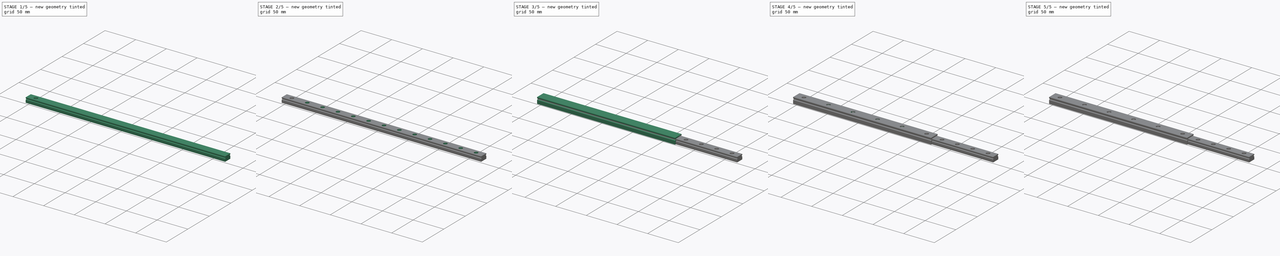
[diagram: build sequence overview — one tinted view per stage of 5, left to right]
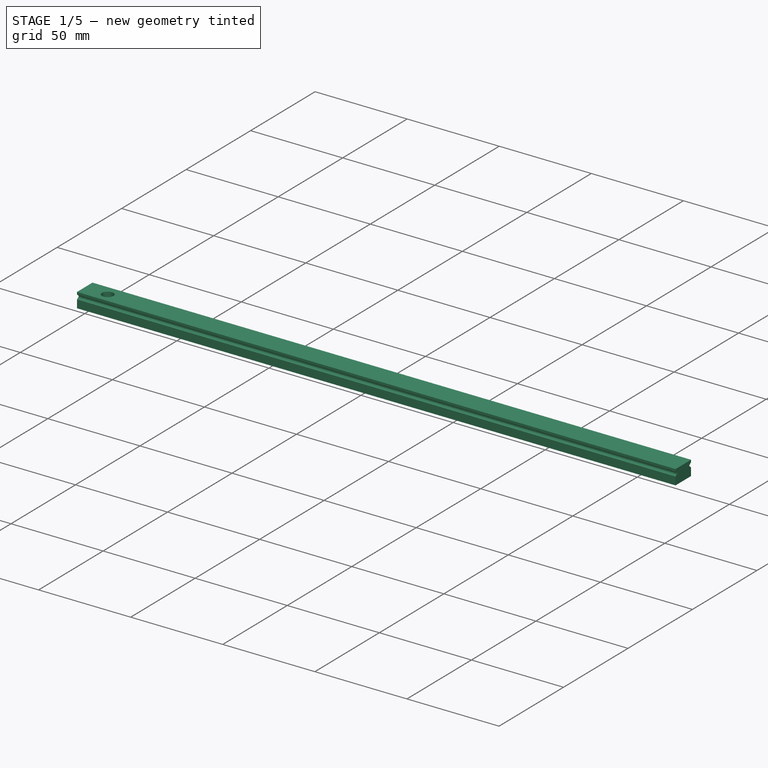
[diagram: stage 1 of 5 — iso view after this stage's code; geometry added in this stage tinted green]
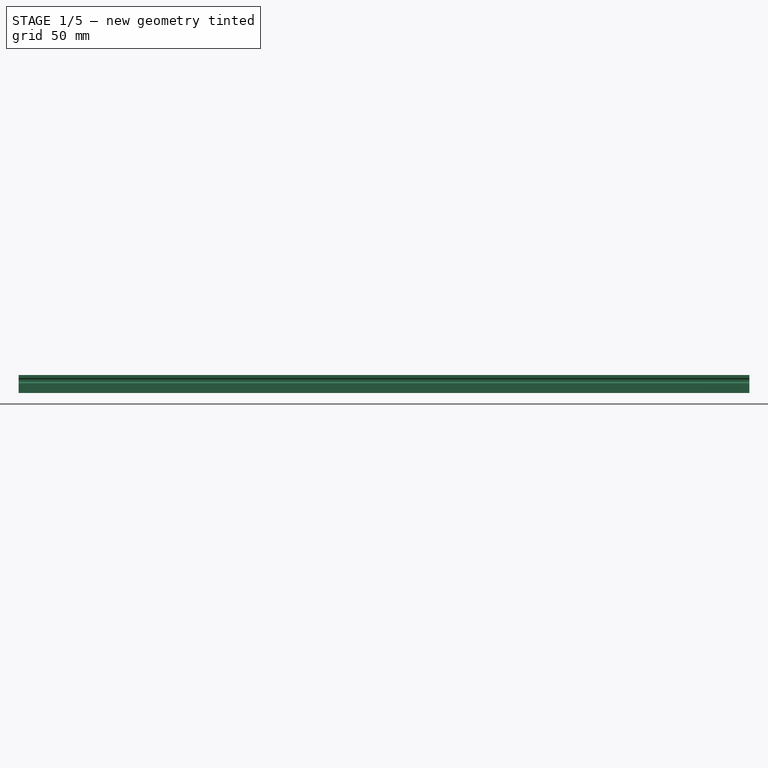
[diagram: stage 1 of 5 — front view after this stage's code; geometry added in this stage tinted green]
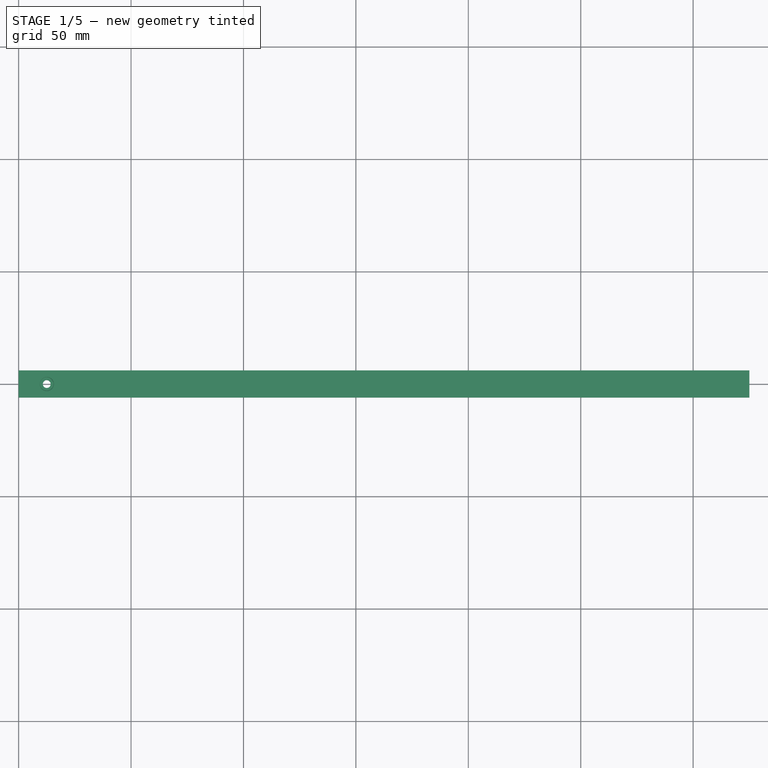
[diagram: stage 1 of 5 — top view after this stage's code; geometry added in this stage tinted green]
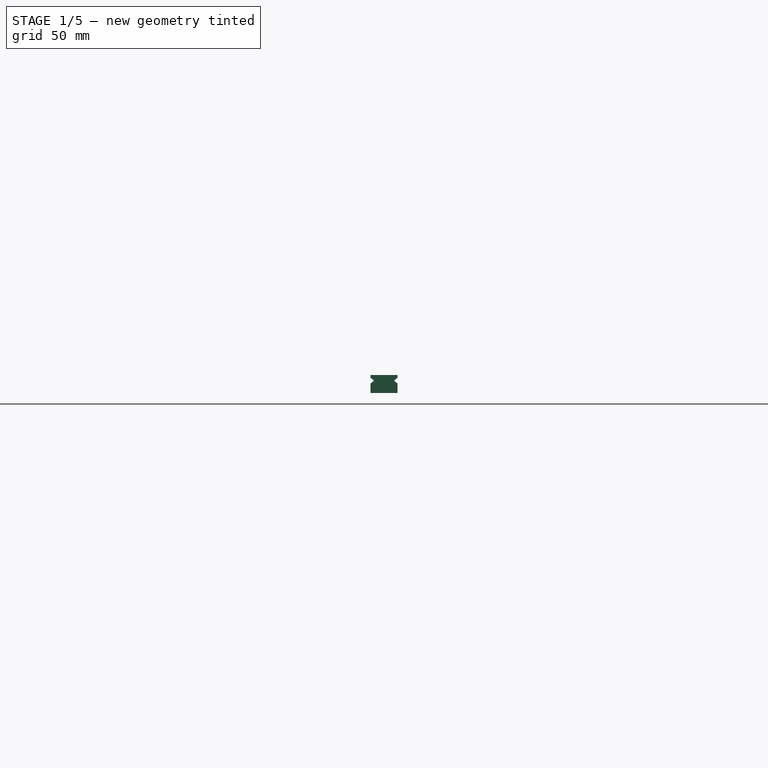
[diagram: stage 1 of 5 — right view after this stage's code; geometry added in this stage tinted green]
FCSTD DOCUMENT  (FreeCAD 1.1R20260414 (Git shallow))
Label: rail_lineaire_MGN
License: Public Domain
LicenseURL: http://en.wikipedia.org/wiki/Public_domain
objects: Part::Feature×42, Sketcher::SketchObject×16, PartDesign::Pocket×12, App::Point×10, App::FeaturePython×6, App::Part×6, PartDesign::Pad×4, Spreadsheet::Sheet×4, PartDesign::Chamfer×4, PartDesign::LinearPattern×4, PartDesign::Body×4, App::TextDocument×2
note: 146 computed .brp shape members not serialized (recipe doc carries the construction recipe); baked Part::Feature solids carry a one-line shape summary decoded from their .brp

FEATURE [PartDesign::Body] Body001  label="Hiwin rail MGN9R"
  AllowCompound = false
  Group = -> [Sketch004,Pad004,Sketch005,Pocket005,Sketch006,Pocket006,Sketch007,Pocket007,Chamfer001,LinearPattern001]
  Origin = -> Origin002
  Tip = -> LinearPattern001
FEATURE [App::FeaturePython] Dimension  label="Dimension_Length_MGN9"  # Draft dimension (typed FeaturePython)
  Diameter = false
  Dimline = (0,50,6.5)
  Direction = (0,0,0)
  Distance = 175
  End = (175,0,6.5)
  Normal = (-3e-16,4e-16,1)
  Start = (0,0,6.5)
  expr: .End.x = Pad004.Length
FEATURE [App::FeaturePython] Dimension001  label="Dimension_Offset_MGN9"  # Draft dimension (typed FeaturePython)
  Diameter = false
  Dimline = (0,20,6.5)
  Direction = (0,0,0)
  Distance = 7.5
  End = (7.5,0,6.5)
  Normal = (-3e-16,4e-16,1)
  Start = (0,0,6.5)
  expr: .End.x = Spreadsheet001.offset
FEATURE [Part::Feature] Part__Feature008002002006397  label="Каретка MGN9-H"
  Placement = pos=(52,0,6) rot=(0.57735,0.57735,0.57735;2.0944rad)
  shape: bbox 40.67 x 20.01 x 8.005 mm, 245 faces, 9 solids (baked)
FEATURE [App::Part] Part002002  label="Hiwin MGN9"
  Group = -> [Body001,Spreadsheet001,Text_document002,Text_document003,Dimension,Dimension001,Part__Feature008002002006397]
  Origin = -> Origin003
FEATURE [Sketcher::SketchObject] Sketch008
  ArcFitTolerance = 0
  AttachmentSupport = -> [YZ_Plane004]
  ExternalTypes = [0]
  FullyConstrained = true
  MakeInternals = false
  MapMode = 5
  Placement = pos=(0,0,0) rot=(0.57735,0.57735,0.57735;2.0944rad)
  _ExternalGeoVersion = 0
  sketch-geometry (4):
    g0: LineSegment StartX=-6 StartY=0 StartZ=0 EndX=6 EndY=0 EndZ=0
    g1: LineSegment StartX=6 StartY=0 StartZ=0 EndX=6 EndY=8 EndZ=0
    g2: LineSegment StartX=6 StartY=8 StartZ=0 EndX=-6 EndY=8 EndZ=0
    g3: LineSegment StartX=-6 StartY=8 StartZ=0 EndX=-6 EndY=0 EndZ=0
  constraints (11):
    c: Coincident(g0,g1)
    c: Coincident(g1,g2)
    c: Coincident(g2,g3)
    c: Coincident(g3,g0)
    c: Horizontal(g0)
    c: Horizontal(g2)
    c: Vertical(g1)
    c: Vertical(g3)
    c: Symmetric(g0,g0,g-1)
    c: DistanceX(g0,g0) = 12  'width'
    c: DistanceY(g1,g1) = 8  'height'
FEATURE [PartDesign::Pad] Pad005
  Direction = (1,0,0)
  Length = 325
  Length2 = 10
  Placement = pos=(0,0,0) rot=(0.57735,0.57735,0.57735;2.0944rad)
  Profile = -> Sketch008
  ReferenceAxis = -> Sketch008 [N_Axis]
  SideType = 0
  Suppressed = false
  Type = 0
  Type2 = 0
  expr: Length = Spreadsheet002.length
FEATURE [Sketcher::SketchObject] Sketch009
  ArcFitTolerance = 0
  AttachmentSupport = -> [YZ_Plane004]
  ExternalTypes = [0]
  FullyConstrained = true
  MakeInternals = false
  MapMode = 5
  Placement = pos=(0,0,0) rot=(0.57735,-0.57735,-0.57735;2.0944rad)
  _ExternalGeoVersion = 0
  expr: Constraints[13] = <<Sketch008>>.Constraints.width / 2 + 0.3 mm
  sketch-geometry (10):
    g0: ArcOfCircle CenterX=-6.3 CenterY=5.5 CenterZ=0 NormalX=0 NormalY=0 NormalZ=1 AngleXU=0 Radius=1.2 StartAngle=0.429775 EndAngle=5.85341
    g1: LineSegment StartX=-5.20913 StartY=6 StartZ=0 EndX=-4.70913 EndY=6 EndZ=0
    g2: LineSegment StartX=-4.70913 StartY=6 StartZ=0 EndX=-4.70913 EndY=5 EndZ=0
    g3: LineSegment StartX=-4.70913 StartY=5 StartZ=0 EndX=-5.20913 EndY=5 EndZ=0
    g4: LineSegment [constr] StartX=-6.3 StartY=5.5 StartZ=0 EndX=-4.70913 EndY=5.5 EndZ=0
    g5: ArcOfCircle CenterX=6.3 CenterY=5.5 CenterZ=0 NormalX=0 NormalY=0 NormalZ=1 AngleXU=0 Radius=1.2 StartAngle=3.57137 EndAngle=8.995
    g6: LineSegment StartX=5.20913 StartY=6 StartZ=0 EndX=4.70913 EndY=6 EndZ=0
    g7: LineSegment StartX=4.70913 StartY=6 StartZ=0 EndX=4.70913 EndY=5 EndZ=0
    g8: LineSegment StartX=4.70913 StartY=5 StartZ=0 EndX=5.20913 EndY=5 EndZ=0
    g9: LineSegment [constr] StartX=6.3 StartY=5.5 StartZ=0 EndX=4.70913 EndY=5.5 EndZ=0
  constraints (29):
    c: Horizontal(g1)
    c: Coincident(g2,g1)
    c: Vertical(g2)
    c: Coincident(g3,g2)
    c: Horizontal(g3)
    c: Coincident(g4,g0)
    c: Horizontal(g4)
    c: Symmetric(g2,g1,g4)
    c: Coincident(g0,g3)
    c: Coincident(g0,g1)
    c: DistanceY(g2,g2) = 1
    c: DistanceX(g1,g1) = 0.5
    c: DistanceY(g-1,g0) = 5.5
    c: DistanceX(g0,g-1) = 6.3
    c: Horizontal(g6)
    c: Coincident(g7,g6)
    c: Vertical(g7)
    c: Coincident(g8,g7)
    c: Horizontal(g8)
    c: Coincident(g9,g5)
    c: Horizontal(g9)
    c: Symmetric(g7,g6,g9)
    c: Coincident(g5,g8)
    c: Coincident(g5,g6)
    c: Diameter(g5) = 2.4
    c: Symmetric(g4,g9,g-2)
    c: Equal(g2,g7)
    c: Equal(g1,g6)
    c: Equal(g0,g5)
FEATURE [PartDesign::Pocket] Pocket008  label="Balls cut001"
  BaseFeature = -> Pad005
  Direction = (1,0,0)
  Length = 5
  Length2 = 5
  Placement = pos=(0,0,0) rot=(0.57735,0.57735,0.57735;2.0944rad)
  Profile = -> Sketch009
  ReferenceAxis = -> Sketch009 [N_Axis]
  SideType = 0
  Suppressed = false
  Type = 1
  Type2 = 0
FEATURE [Sketcher::SketchObject] Sketch010
  ArcFitTolerance = 0
  AttachmentOffset = pos=(12.5,0,0) rot=(0,0,1;1.5708rad)
  AttachmentSupport = -> [XY_Plane004]
  ExternalTypes = [0]
  FullyConstrained = true
  MakeInternals = false
  MapMode = 5
  Placement = pos=(12.5,0,0) rot=(0,0,1;1.5708rad)
  _ExternalGeoVersion = 0
  expr: .AttachmentOffset.Base.x = Spreadsheet002.offset
  sketch-geometry (1):
    g0: Circle CenterX=0 CenterY=0 CenterZ=0 NormalX=0 NormalY=0 NormalZ=1 AngleXU=0 Radius=1.75
  constraints (2):
    c: Coincident(g0,g-1)
    c: Diameter(g0) = 3.5
FEATURE [PartDesign::Pocket] Pocket009  label="Screw hole001"
  BaseFeature = -> Pocket008
  Direction = (0,0,-1)
  Length = 5
  Length2 = 5
  Placement = pos=(0,0,0) rot=(0.57735,0.57735,0.57735;2.0944rad)
  Profile = -> Sketch010
  ReferenceAxis = -> Sketch010 [N_Axis]
  SideType = 2
  Suppressed = false
  Type = 1
  Type2 = 0
FEATURE [Sketcher::SketchObject] Sketch011
  ArcFitTolerance = 0
  AttachmentOffset = pos=(12.5,0,8) rot=(0,0,1;1.5708rad)
  AttachmentSupport = -> [XY_Plane004]
  ExternalTypes = [0]
  FullyConstrained = true
  MakeInternals = false
  MapMode = 5
  Placement = pos=(12.5,0,8) rot=(0,0,1;1.5708rad)
  _ExternalGeoVersion = 0
  expr: .AttachmentOffset.Base.x = Spreadsheet002.offset
  expr: .AttachmentOffset.Base.z = Sketch008.Constraints.height
  sketch-geometry (1):
    g0: Circle CenterX=0 CenterY=0 CenterZ=0 NormalX=0 NormalY=0 NormalZ=1 AngleXU=0 Radius=3
  constraints (2):
    c: Coincident(g0,g-1)
    c: Diameter(g0) = 6
FEATURE [PartDesign::Pocket] Pocket010  label="Screw head cut001"
  BaseFeature = -> Pocket009
  Direction = (0,0,-1)
  Length = 4.5
  Length2 = 5
  Placement = pos=(0,0,0) rot=(0.57735,0.57735,0.57735;2.0944rad)
  Profile = -> Sketch011
  ReferenceAxis = -> Sketch011 [N_Axis]
  SideType = 0
  Suppressed = false
  Type = 0
  Type2 = 0
FEATURE [PartDesign::Chamfer] Chamfer002
  Angle = 45
  Base = -> Pocket010 [Edge47]
  BaseFeature = -> Pocket010
  ChamferType = 0
  FlipDirection = false
  Placement = pos=(0,0,0) rot=(0.57735,0.57735,0.57735;2.0944rad)
  Size = 0.2
  Size2 = 1
  SupportTransform = false
  Suppressed = false
  UseAllEdges = false
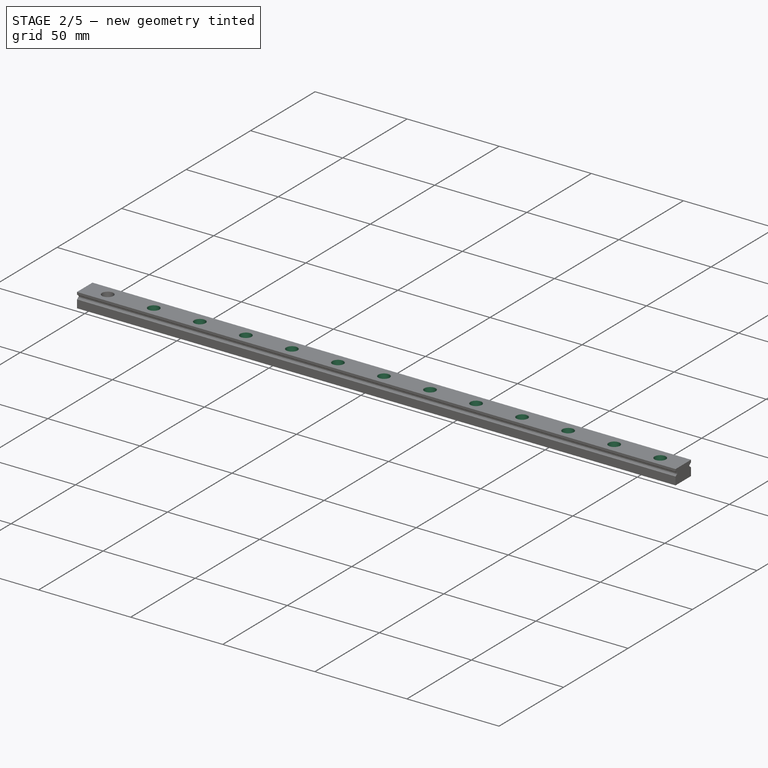
[diagram: stage 2 of 5 — iso view after this stage's code; geometry added in this stage tinted green]
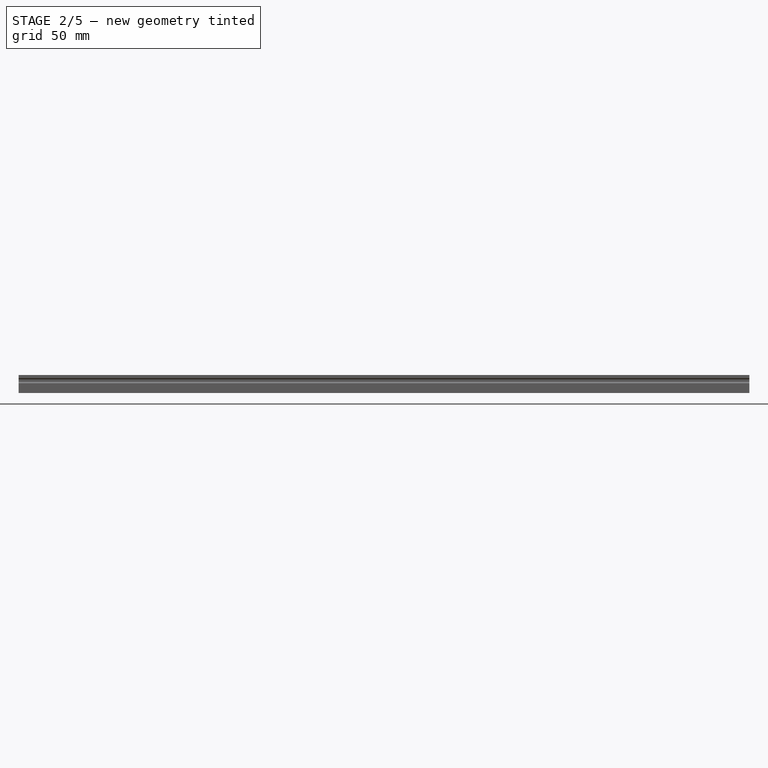
[diagram: stage 2 of 5 — front view after this stage's code; geometry added in this stage tinted green]
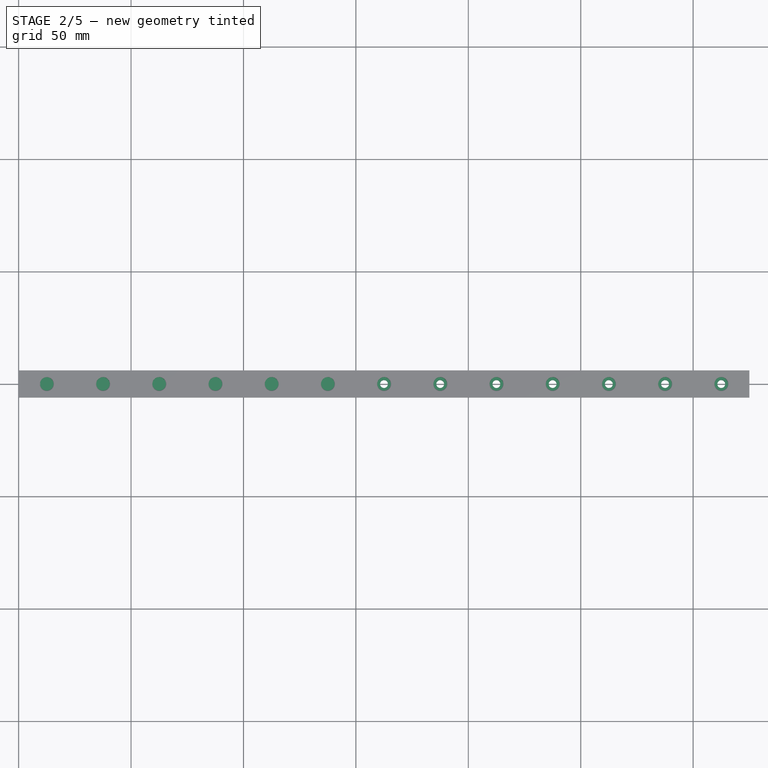
[diagram: stage 2 of 5 — top view after this stage's code; geometry added in this stage tinted green]
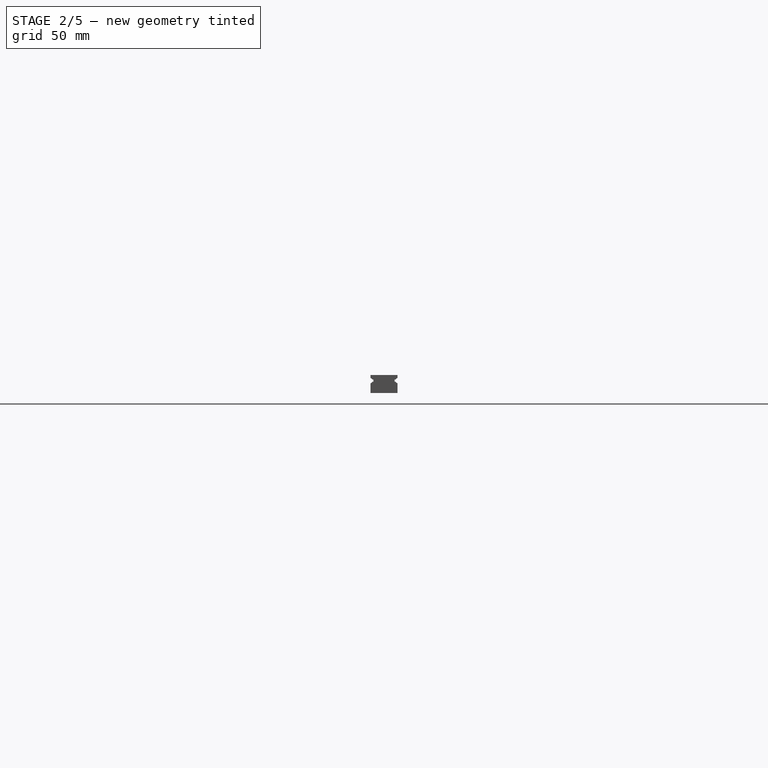
[diagram: stage 2 of 5 — right view after this stage's code; geometry added in this stage tinted green]
FEATURE [PartDesign::LinearPattern] LinearPattern002
  BaseFeature = -> Chamfer002
  Direction = -> Sketch010 [V_Axis]
  Length = 300
  Length2 = 100
  Mode = 0
  Mode2 = 0
  Occurrences = 13
  Occurrences2 = 1
  Offset = 25
  Offset2 = 10
  Originals = -> [Pocket009,Pocket010,Chamfer002]
  Placement = pos=(0,0,0) rot=(0.57735,0.57735,0.57735;2.0944rad)
  Reversed = true
  Reversed2 = false
  SpacingPattern = [0]
  SpacingPattern2 = [0]
  Spacings = [-1,-1,-1,-1,-1,-1,-1,-1,-1,-1,-1,-1]
  Suppressed = false
  TransformMode = 0
  expr: Length = Spreadsheet002.distance
  expr: Occurrences = Spreadsheet002.holes_number
FEATURE [PartDesign::Body] Body003  label="Hiwin rail MGN15R"
  AllowCompound = false
  Group = -> [Sketch012,Pad006,Sketch013,Pocket011,Sketch014,Pocket012,Sketch015,Pocket013,Chamfer003,LinearPattern003]
  Origin = -> Origin006
  Tip = -> LinearPattern003
FEATURE [Spreadsheet::Sheet] Spreadsheet003  label="Spreadsheet_MGN15"
  cells = A1='Length rail; B1='Длина рельсы, мм; C1(length)=225; A2='Holes distance; B2='Расстояние между отверстиями; C2(holes_distance)=40; A3='Holes number; B3='Количество отверстий; C3(holes_number)==floor((length - min_offset * 2) / holes_distance) + 1; A4='Distance end holes; B4='Расстояние между центрами крайних отверстий; C4(distance)==holes_distance * (holes_number - 1); A5='Offset 1st hole; B5='Позиция 1го отверстия; C5(offset)==(length - distance) / 2; A6='Min offset 1st hole; B6='Минимальное расстояние от края до центра 1го отверстия; C6(min_offset)=5
FEATURE [App::Part] Part002004  label="Hiwin MGN15"
  Group = -> [Body003,Spreadsheet003,Dimension004,Dimension005]
  Origin = -> Origin007
  Placement = pos=(0,-200,0) rot=(0,0,1;0rad)
FEATURE [App::FeaturePython] Dimension006  label="Dimension_Length_MGN7"  # Draft dimension (typed FeaturePython)
  Diameter = false
  Dimline = (0,50,6.5)
  Direction = (0,0,0)
  Distance = 150
  End = (150,0,6.5)
  Normal = (-3e-16,4e-16,1)
  Start = (0,0,6.5)
  expr: .End.x = Pad007.Length
FEATURE [App::FeaturePython] Dimension007  label="Dimension_Offset_MGN7"  # Draft dimension (typed FeaturePython)
  Diameter = false
  Dimline = (0,20,6.5)
  Direction = (0,0,0)
  Distance = 7.5
  End = (7.5,0,6.5)
  Normal = (-3e-16,4e-16,1)
  Start = (0,0,6.5)
  expr: .End.x = Spreadsheet004.offset
FEATURE [Sketcher::SketchObject] Sketch016
  ArcFitTolerance = 0
  AttachmentSupport = -> [YZ_Plane008]
  ExternalTypes = [0]
  FullyConstrained = true
  MakeInternals = false
  MapMode = 5
  Placement = pos=(0,0,0) rot=(0.57735,0.57735,0.57735;2.0944rad)
  _ExternalGeoVersion = 0
  sketch-geometry (4):
    g0: LineSegment StartX=-3.5 StartY=0 StartZ=0 EndX=3.5 EndY=0 EndZ=0
    g1: LineSegment StartX=3.5 StartY=0 StartZ=0 EndX=3.5 EndY=4.8 EndZ=0
    g2: LineSegment StartX=3.5 StartY=4.8 StartZ=0 EndX=-3.5 EndY=4.8 EndZ=0
    g3: LineSegment StartX=-3.5 StartY=4.8 StartZ=0 EndX=-3.5 EndY=0 EndZ=0
  constraints (11):
    c: Coincident(g0,g1)
    c: Coincident(g1,g2)
    c: Coincident(g2,g3)
    c: Coincident(g3,g0)
    c: Horizontal(g0)
    c: Horizontal(g2)
    c: Vertical(g1)
    c: Vertical(g3)
    c: Symmetric(g0,g0,g-1)
    c: DistanceX(g0,g0) = 7  'width'
    c: DistanceY(g1,g1) = 4.8  'height'
FEATURE [PartDesign::Pad] Pad007
  Direction = (1,0,0)
  Length = 150
  Length2 = 10
  Placement = pos=(0,0,0) rot=(0.57735,0.57735,0.57735;2.0944rad)
  Profile = -> Sketch016
  ReferenceAxis = -> Sketch016 [N_Axis]
  SideType = 0
  Suppressed = false
  Type = 0
  Type2 = 0
  expr: Length = Spreadsheet004.length
FEATURE [Sketcher::SketchObject] Sketch017
  ArcFitTolerance = 0
  AttachmentSupport = -> [YZ_Plane008]
  ExternalTypes = [0]
  FullyConstrained = true
  MakeInternals = false
  MapMode = 5
  Placement = pos=(0,0,0) rot=(0.57735,-0.57735,-0.57735;2.0944rad)
  _ExternalGeoVersion = 0
  expr: Constraints[12] = 3.05 + 0.5 / 2
  expr: Constraints[13] = <<Sketch016>>.Constraints.width / 2 + 0.1 mm
  sketch-geometry (10):
    g0: ArcOfCircle CenterX=-3.6 CenterY=3.3 CenterZ=0 NormalX=0 NormalY=0 NormalZ=1 AngleXU=0 Radius=0.8 StartAngle=0.317824 EndAngle=5.96536
    g1: LineSegment StartX=-2.84007 StartY=3.55 StartZ=0 EndX=-2.34007 EndY=3.55 EndZ=0
    g2: LineSegment StartX=-2.34007 StartY=3.55 StartZ=0 EndX=-2.34007 EndY=3.05 EndZ=0
    g3: LineSegment StartX=-2.34007 StartY=3.05 StartZ=0 EndX=-2.84007 EndY=3.05 EndZ=0
    g4: LineSegment [constr] StartX=-3.6 StartY=3.3 StartZ=0 EndX=-2.34007 EndY=3.3 EndZ=0
    g5: ArcOfCircle CenterX=3.6 CenterY=3.3 CenterZ=0 NormalX=0 NormalY=0 NormalZ=1 AngleXU=0 Radius=0.8 StartAngle=3.45942 EndAngle=9.10695
    g6: LineSegment StartX=2.84007 StartY=3.55 StartZ=0 EndX=2.34007 EndY=3.55 EndZ=0
    g7: LineSegment StartX=2.34007 StartY=3.55 StartZ=0 EndX=2.34007 EndY=3.05 EndZ=0
    g8: LineSegment StartX=2.34007 StartY=3.05 StartZ=0 EndX=2.84007 EndY=3.05 EndZ=0
    g9: LineSegment [constr] StartX=3.6 StartY=3.3 StartZ=0 EndX=2.34007 EndY=3.3 EndZ=0
  constraints (29):
    c: Horizontal(g1)
    c: Coincident(g2,g1)
    c: Vertical(g2)
    c: Coincident(g3,g2)
    c: Horizontal(g3)
    c: Coincident(g4,g0)
    c: Horizontal(g4)
    c: Symmetric(g2,g1,g4)
    c: Coincident(g0,g3)
    c: Coincident(g0,g1)
    c: DistanceY(g2,g2) = 0.5
    c: DistanceX(g1,g1) = 0.5
    c: DistanceY(g-1,g0) = 3.3
    c: DistanceX(g0,g-1) = 3.6
    c: Horizontal(g6)
    c: Coincident(g7,g6)
    c: Vertical(g7)
    c: Coincident(g8,g7)
    c: Horizontal(g8)
    c: Coincident(g9,g5)
    c: Horizontal(g9)
    c: Symmetric(g7,g6,g9)
    c: Coincident(g5,g8)
    c: Coincident(g5,g6)
    c: Diameter(g5) = 1.6
    c: Symmetric(g4,g9,g-2)
    c: Equal(g2,g7)
    c: Equal(g1,g6)
    c: Equal(g0,g5)
FEATURE [PartDesign::Pocket] Pocket014  label="Balls cut003"
  BaseFeature = -> Pad007
  Direction = (1,0,0)
  Length = 5
  Length2 = 5
  Placement = pos=(0,0,0) rot=(0.57735,0.57735,0.57735;2.0944rad)
  Profile = -> Sketch017
  ReferenceAxis = -> Sketch017 [N_Axis]
  SideType = 0
  Suppressed = false
  Type = 1
  Type2 = 0
FEATURE [Sketcher::SketchObject] Sketch018
  ArcFitTolerance = 0
  AttachmentOffset = pos=(7.5,0,0) rot=(0,0,1;1.5708rad)
  AttachmentSupport = -> [XY_Plane008]
  ExternalTypes = [0]
  FullyConstrained = true
  MakeInternals = false
  MapMode = 5
  Placement = pos=(7.5,0,0) rot=(0,0,1;1.5708rad)
  _ExternalGeoVersion = 0
  expr: .AttachmentOffset.Base.x = Spreadsheet004.offset
  sketch-geometry (1):
    g0: Circle CenterX=0 CenterY=0 CenterZ=0 NormalX=0 NormalY=0 NormalZ=1 AngleXU=0 Radius=1.2
  constraints (2):
    c: Coincident(g0,g-1)
    c: Diameter(g0) = 2.4
FEATURE [PartDesign::Pocket] Pocket015  label="Screw hole003"
  BaseFeature = -> Pocket014
  Direction = (0,0,-1)
  Length = 5
  Length2 = 5
  Placement = pos=(0,0,0) rot=(0.57735,0.57735,0.57735;2.0944rad)
  Profile = -> Sketch018
  ReferenceAxis = -> Sketch018 [N_Axis]
  SideType = 2
  Suppressed = false
  Type = 1
  Type2 = 0
FEATURE [Sketcher::SketchObject] Sketch019
  ArcFitTolerance = 0
  AttachmentOffset = pos=(7.5,0,4.8) rot=(0,0,1;1.5708rad)
  AttachmentSupport = -> [XY_Plane008]
  ExternalTypes = [0]
  FullyConstrained = true
  MakeInternals = false
  MapMode = 5
  Placement = pos=(7.5,0,4.8) rot=(0,0,1;1.5708rad)
  _ExternalGeoVersion = 0
  expr: .AttachmentOffset.Base.x = Spreadsheet004.offset
  expr: .AttachmentOffset.Base.z = Sketch016.Constraints.height
  sketch-geometry (1):
    g0: Circle CenterX=0 CenterY=0 CenterZ=0 NormalX=0 NormalY=0 NormalZ=1 AngleXU=0 Radius=2.1
  constraints (2):
    c: Coincident(g0,g-1)
    c: Diameter(g0) = 4.2
FEATURE [PartDesign::Pocket] Pocket016  label="Screw head cut003"
  BaseFeature = -> Pocket015
  Direction = (0,0,-1)
  Length = 3.5
  Length2 = 5
  Placement = pos=(0,0,0) rot=(0.57735,0.57735,0.57735;2.0944rad)
  Profile = -> Sketch019
  ReferenceAxis = -> Sketch019 [N_Axis]
  SideType = 0
  Suppressed = false
  Type = 0
  Type2 = 0
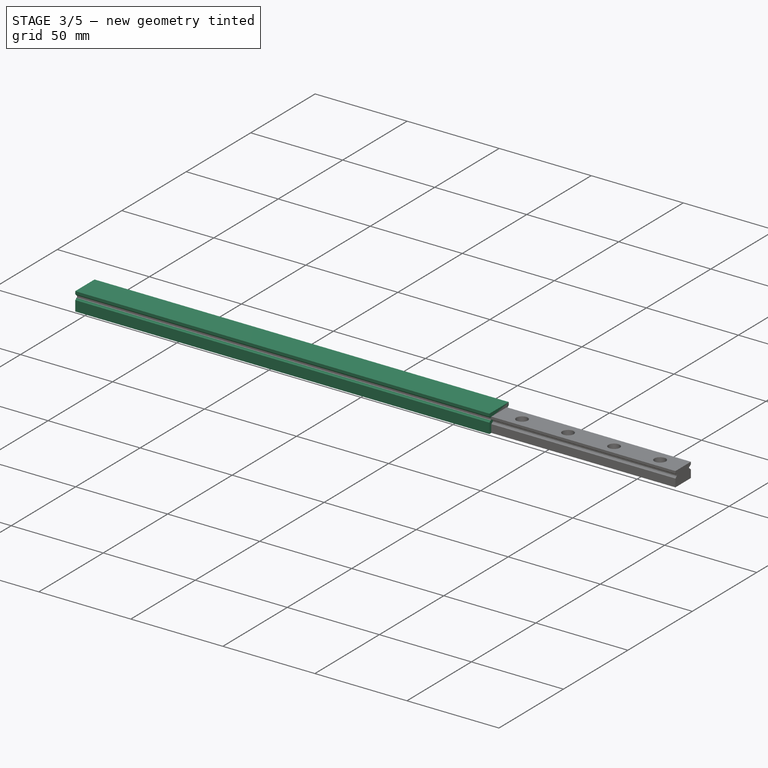
[diagram: stage 3 of 5 — iso view after this stage's code; geometry added in this stage tinted green]
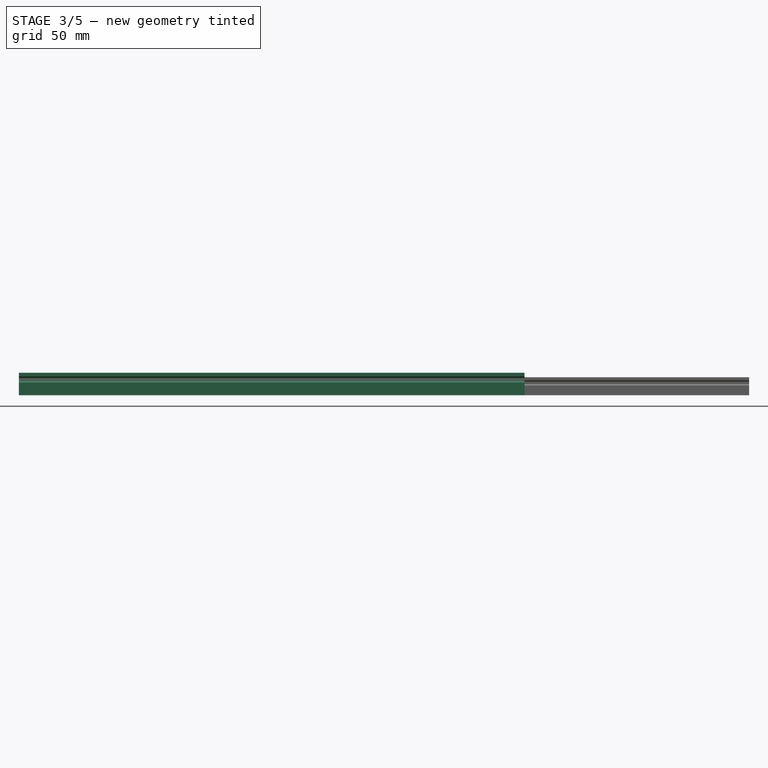
[diagram: stage 3 of 5 — front view after this stage's code; geometry added in this stage tinted green]
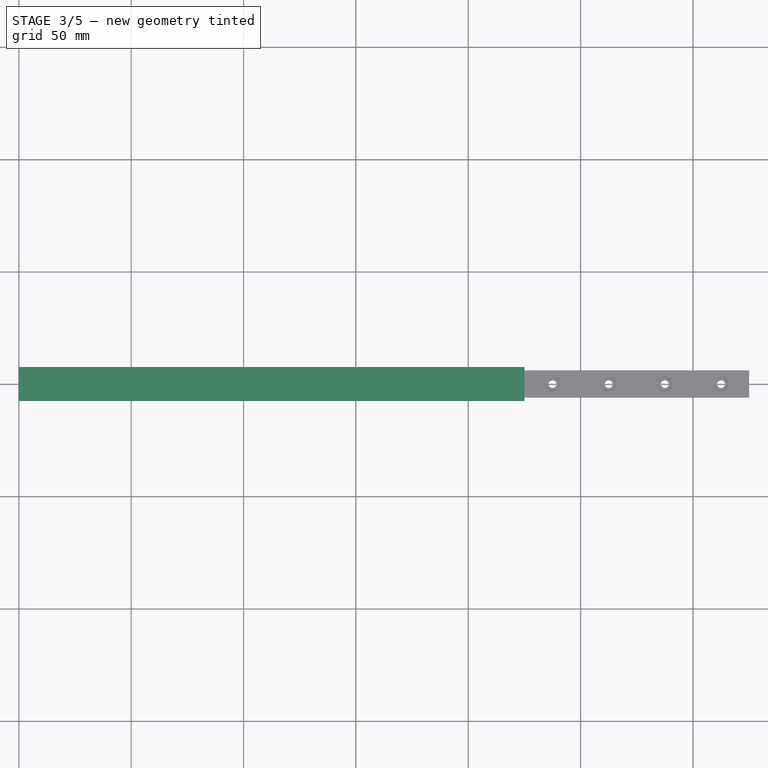
[diagram: stage 3 of 5 — top view after this stage's code; geometry added in this stage tinted green]
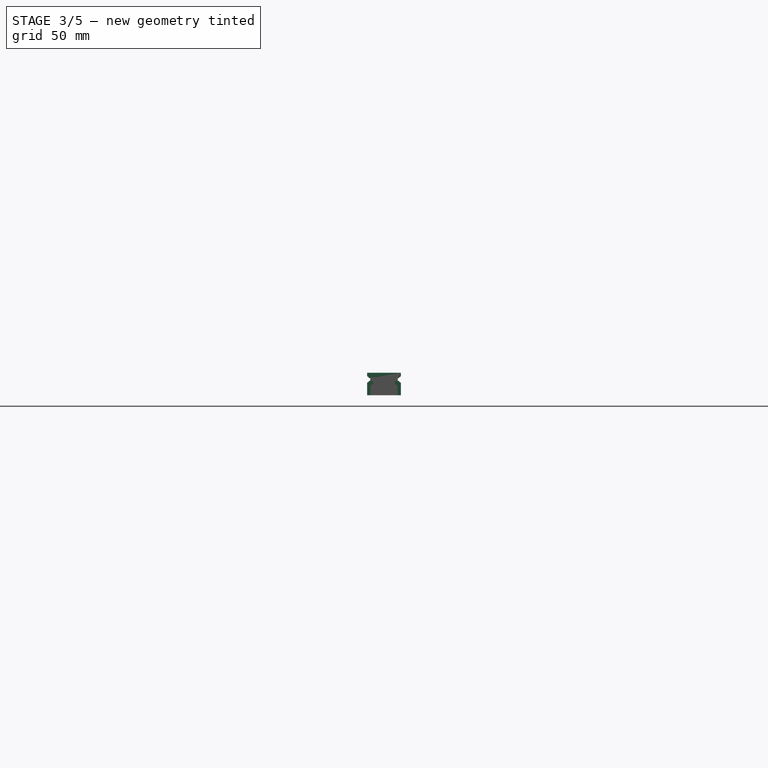
[diagram: stage 3 of 5 — right view after this stage's code; geometry added in this stage tinted green]
FEATURE [PartDesign::Body] Body002  label="Hiwin rail MGN12R"
  AllowCompound = false
  Group = -> [Sketch008,Pad005,Sketch009,Pocket008,Sketch010,Pocket009,Sketch011,Pocket010,Chamfer002,LinearPattern002]
  Origin = -> Origin004
  Tip = -> LinearPattern002
FEATURE [Spreadsheet::Sheet] Spreadsheet002  label="Spreadsheet_MGN12"
  cells = A1='Length rail; B1='Длина рельсы, мм; C1(length)=325; A2='Holes distance; B2='Расстояние между отверстиями; C2(holes_distance)=25; A3='Holes number; B3='Количество отверстий; C3(holes_number)==floor((length - min_offset * 2) / holes_distance) + 1; A4='Distance end holes; B4='Расстояние между центрами крайних отверстий; C4(distance)==holes_distance * (holes_number - 1); A5='Offset 1st hole; B5='Позиция 1го отверстия; C5(offset)==(length - distance) / 2; A6='Min offset 1st hole; B6='Минимальное расстояние от края до центра 1го отверстия; C6(min_offset)=5
FEATURE [App::Part] Part002003  label="Hiwin MGN12"
  Group = -> [Body002,Spreadsheet002]
  Origin = -> Origin005
FEATURE [App::FeaturePython] Dimension004  label="Dimension_Length_MGN15"  # Draft dimension (typed FeaturePython)
  Diameter = false
  Dimline = (0,50,6.5)
  Direction = (0,0,0)
  Distance = 225
  End = (225,0,6.5)
  Normal = (-3e-16,4e-16,1)
  Start = (0,0,6.5)
  expr: .End.x = Pad006.Length
FEATURE [App::FeaturePython] Dimension005  label="Dimension_Offset_MGN15"  # Draft dimension (typed FeaturePython)
  Diameter = false
  Dimline = (0,20,6.5)
  Direction = (0,0,0)
  Distance = 12.5
  End = (12.5,0,6.5)
  Normal = (-3e-16,4e-16,1)
  Start = (0,0,6.5)
  expr: .End.x = Spreadsheet003.offset
FEATURE [Sketcher::SketchObject] Sketch012
  ArcFitTolerance = 0
  AttachmentSupport = -> [YZ_Plane006]
  ExternalTypes = [0]
  FullyConstrained = true
  MakeInternals = false
  MapMode = 5
  Placement = pos=(0,0,0) rot=(0.57735,0.57735,0.57735;2.0944rad)
  _ExternalGeoVersion = 0
  sketch-geometry (4):
    g0: LineSegment StartX=-7.5 StartY=0 StartZ=0 EndX=7.5 EndY=0 EndZ=0
    g1: LineSegment StartX=7.5 StartY=0 StartZ=0 EndX=7.5 EndY=10 EndZ=0
    g2: LineSegment StartX=7.5 StartY=10 StartZ=0 EndX=-7.5 EndY=10 EndZ=0
    g3: LineSegment StartX=-7.5 StartY=10 StartZ=0 EndX=-7.5 EndY=0 EndZ=0
  constraints (11):
    c: Coincident(g0,g1)
    c: Coincident(g1,g2)
    c: Coincident(g2,g3)
    c: Coincident(g3,g0)
    c: Horizontal(g0)
    c: Horizontal(g2)
    c: Vertical(g1)
    c: Vertical(g3)
    c: Symmetric(g0,g0,g-1)
    c: DistanceX(g0,g0) = 15  'width'
    c: DistanceY(g1,g1) = 10  'height'
FEATURE [PartDesign::Pad] Pad006
  Direction = (1,0,0)
  Length = 225
  Length2 = 10
  Placement = pos=(0,0,0) rot=(0.57735,0.57735,0.57735;2.0944rad)
  Profile = -> Sketch012
  ReferenceAxis = -> Sketch012 [N_Axis]
  SideType = 0
  Suppressed = false
  Type = 0
  Type2 = 0
  expr: Length = Spreadsheet003.length
FEATURE [Sketcher::SketchObject] Sketch013
  ArcFitTolerance = 0
  AttachmentSupport = -> [YZ_Plane006]
  ExternalTypes = [0]
  FullyConstrained = true
  MakeInternals = false
  MapMode = 5
  Placement = pos=(0,0,0) rot=(0.57735,-0.57735,-0.57735;2.0944rad)
  _ExternalGeoVersion = 0
  expr: Constraints[13] = <<Sketch012>>.Constraints.width / 2 + 0.5 mm
  sketch-geometry (10):
    g0: ArcOfCircle CenterX=-8 CenterY=7 CenterZ=0 NormalX=0 NormalY=0 NormalZ=1 AngleXU=0 Radius=1.5 StartAngle=0.411517 EndAngle=5.87167
    g1: LineSegment StartX=-6.62523 StartY=7.6 StartZ=0 EndX=-6.12523 EndY=7.6 EndZ=0
    g2: LineSegment StartX=-6.12523 StartY=7.6 StartZ=0 EndX=-6.12523 EndY=6.4 EndZ=0
    g3: LineSegment StartX=-6.12523 StartY=6.4 StartZ=0 EndX=-6.62523 EndY=6.4 EndZ=0
    g4: LineSegment [constr] StartX=-8 StartY=7 StartZ=0 EndX=-6.12523 EndY=7 EndZ=0
    g5: ArcOfCircle CenterX=8 CenterY=7 CenterZ=0 NormalX=0 NormalY=0 NormalZ=1 AngleXU=0 Radius=1.5 StartAngle=3.55311 EndAngle=9.01326
    g6: LineSegment StartX=6.62523 StartY=7.6 StartZ=0 EndX=6.12523 EndY=7.6 EndZ=0
    g7: LineSegment StartX=6.12523 StartY=7.6 StartZ=0 EndX=6.12523 EndY=6.4 EndZ=0
    g8: LineSegment StartX=6.12523 StartY=6.4 StartZ=0 EndX=6.62523 EndY=6.4 EndZ=0
    g9: LineSegment [constr] StartX=8 StartY=7 StartZ=0 EndX=6.12523 EndY=7 EndZ=0
  constraints (29):
    c: Horizontal(g1)
    c: Coincident(g2,g1)
    c: Vertical(g2)
    c: Coincident(g3,g2)
    c: Horizontal(g3)
    c: Coincident(g4,g0)
    c: Horizontal(g4)
    c: Symmetric(g2,g1,g4)
    c: Coincident(g0,g3)
    c: Coincident(g0,g1)
    c: DistanceY(g2,g2) = 1.2
    c: DistanceX(g1,g1) = 0.5
    c: DistanceY(g-1,g0) = 7
    c: DistanceX(g0,g-1) = 8
    c: Horizontal(g6)
    c: Coincident(g7,g6)
    c: Vertical(g7)
    c: Coincident(g8,g7)
    c: Horizontal(g8)
    c: Coincident(g9,g5)
    c: Horizontal(g9)
    c: Symmetric(g7,g6,g9)
    c: Coincident(g5,g8)
    c: Coincident(g5,g6)
    c: Diameter(g5) = 3
    c: Symmetric(g4,g9,g-2)
    c: Equal(g2,g7)
    c: Equal(g1,g6)
    c: Equal(g0,g5)
FEATURE [PartDesign::Pocket] Pocket011  label="Balls cut002"
  BaseFeature = -> Pad006
  Direction = (1,0,0)
  Length = 5
  Length2 = 5
  Placement = pos=(0,0,0) rot=(0.57735,0.57735,0.57735;2.0944rad)
  Profile = -> Sketch013
  ReferenceAxis = -> Sketch013 [N_Axis]
  SideType = 0
  Suppressed = false
  Type = 1
  Type2 = 0
FEATURE [PartDesign::Chamfer] Chamfer004
  Angle = 45
  Base = -> Pocket016 [Edge47]
  BaseFeature = -> Pocket016
  ChamferType = 0
  FlipDirection = false
  Placement = pos=(0,0,0) rot=(0.57735,0.57735,0.57735;2.0944rad)
  Size = 0.2
  Size2 = 1
  SupportTransform = false
  Suppressed = false
  UseAllEdges = false
FEATURE [PartDesign::LinearPattern] LinearPattern004
  BaseFeature = -> Chamfer004
  Direction = -> Sketch018 [V_Axis]
  Length = 135
  Length2 = 100
  Mode = 0
  Mode2 = 0
  Occurrences = 10
  Occurrences2 = 1
  Offset = 15
  Offset2 = 10
  Originals = -> [Pocket015,Pocket016,Chamfer004]
  Placement = pos=(0,0,0) rot=(0.57735,0.57735,0.57735;2.0944rad)
  Reversed = true
  Reversed2 = false
  SpacingPattern = [0]
  SpacingPattern2 = [0]
  Spacings = [-1,-1,-1,-1,-1,-1,-1,-1,-1]
  Suppressed = false
  TransformMode = 0
  expr: Length = Spreadsheet004.distance
  expr: Occurrences = Spreadsheet004.holes_number
FEATURE [PartDesign::Body] Body004  label="Hiwin rail MGN7R"
  AllowCompound = false
  Group = -> [Sketch016,Pad007,Sketch017,Pocket014,Sketch018,Pocket015,Sketch019,Pocket016,Chamfer004,LinearPattern004]
  Origin = -> Origin008
  Tip = -> LinearPattern004
FEATURE [Spreadsheet::Sheet] Spreadsheet004  label="Spreadsheet_MGN7"
  cells = A1='Length rail; B1='Длина рельсы, мм; C1(length)=150; A2='Holes distance; B2='Расстояние между отверстиями; C2(holes_distance)=15; A3='Holes number; B3='Количество отверстий; C3(holes_number)==floor((length - min_offset * 2) / holes_distance) + 1; A4='Distance end holes; B4='Расстояние между центрами крайних отверстий; C4(distance)==holes_distance * (holes_number - 1); A5='Offset 1st hole; B5='Позиция 1го отверстия; C5(offset)==(length - distance) / 2; A6='Min offset 1st hole; B6='Минимальное расстояние от края до центра 1го отверстия; C6(min_offset)=5
FEATURE [App::Part] Part002005  label="Hiwin MGN7"
  Group = -> [Body004,Spreadsheet004,Dimension006,Dimension007]
  Origin = -> Origin009
  Placement = pos=(0,100,0) rot=(0,0,1;0rad)
FEATURE [Part::Feature] Part__Feature  label="MGN12H_Body"
  shape: bbox 27 x 10.2 x 48.24 mm, 183 faces (baked)
FEATURE [Part::Feature] Part__Feature008002002006398  label="MGN12H_EndCap"
  Placement = pos=(5.7441e-12,8.41e-14,21.2) rot=(0,1,0;3.14159rad)
  shape: bbox 26.8 x 9.4 x 5 mm, 23 faces (baked)
FEATURE [Part::Feature] Part__Feature008002002006399  label="MGN12H_EndCap001"
  Placement = pos=(-7.5658e-12,-8.59e-14,-16.2) rot=(0,1,0;3.14159rad)
  shape: bbox 26.8 x 9.4 x 5 mm, 23 faces (baked)
FEATURE [Part::Feature] Part__Feature008002002006400  label="MGN12H_Seal"
  Placement = pos=(-5.6e-15,-0.3,22.7) rot=(0,0,1;0rad)
  shape: bbox 26.8 x 9.4 x 1.7 mm, 155 faces (baked)
FEATURE [Part::Feature] Part__Feature008002002006401  label="MGN12H_Seal001"
  Placement = pos=(-7.2971e-12,-0.3,-22.7) rot=(0,1,0;3.14159rad)
  shape: bbox 26.8 x 9.4 x 1.7 mm, 155 faces (baked)
FEATURE [Part::Feature] Part__Feature008002002006402  label="MGN12H_Cage"
  Placement = pos=(-7.7,-2.54,-20.95) rot=(-0.57735,-0.57735,-0.57735;2.0944rad)
  shape: bbox 3.312 x 0.5 x 42.52 mm, 12 faces (baked)
FEATURE [Part::Feature] Part__Feature008002002006403  label="MGN12H_Cage001"
  Placement = pos=(7.7,-2.79,20.95) rot=(-0.576199,0.576199,0.579647;2.09095rad)
  shape: bbox 3.312 x 0.7505 x 42.52 mm, 12 faces (baked)
FEATURE [Part::Feature] Part__Feature008002002006404  label="MGN12H_Ball"
  Placement = pos=(-6.48,-2.54,19.51) rot=(-0.365574,-0.473745,0.8012;0.619125rad)
  shape: bbox 2.38 x 2.38 x 2.38 mm, 2 faces (baked)
FEATURE [Part::Feature] Part__Feature008002002006405  label="MGN12H_Ball001"
  Placement = pos=(-6.48,-2.54,17.13) rot=(0.592122,0.368399,0.71671;0.865325rad)
  shape: bbox 2.38 x 2.38 x 2.38 mm, 2 faces (baked)
FEATURE [Part::Feature] Part__Feature008002002006406  label="MGN12H_Ball002"
  Placement = pos=(-6.48,-2.54,14.75) rot=(-0.365574,-0.473745,0.8012;0.619125rad)
  shape: bbox 2.38 x 2.38 x 2.38 mm, 2 faces (baked)
FEATURE [Part::Feature] Part__Feature008002002006407  label="MGN12H_Ball003"
  Placement = pos=(-6.48,-2.54,12.37) rot=(-0.365574,-0.473745,0.8012;0.619125rad)
  shape: bbox 2.38 x 2.38 x 2.38 mm, 2 faces (baked)
FEATURE [Part::Feature] Part__Feature008002002006408  label="MGN12H_Ball004"
  Placement = pos=(-6.48,-2.54,9.99) rot=(-0.365574,-0.473745,0.8012;0.619125rad)
  shape: bbox 2.38 x 2.38 x 2.38 mm, 2 faces (baked)
FEATURE [Part::Feature] Part__Feature008002002006409  label="MGN12H_Ball005"
  Placement = pos=(-6.48,-2.54,7.61) rot=(-0.365574,-0.473745,0.8012;0.619125rad)
  shape: bbox 2.38 x 2.38 x 2.38 mm, 2 faces (baked)
FEATURE [Part::Feature] Part__Feature008002002006410  label="MGN12H_Ball006"
  Placement = pos=(-6.48,-2.54,5.23) rot=(-0.365574,-0.473745,0.8012;0.619125rad)
  shape: bbox 2.38 x 2.38 x 2.38 mm, 2 faces (baked)
FEATURE [Part::Feature] Part__Feature008002002006411  label="MGN12H_Ball007"
  Placement = pos=(-6.48,-2.54,2.85) rot=(-0.365574,-0.473745,0.8012;0.619125rad)
  shape: bbox 2.38 x 2.38 x 2.38 mm, 2 faces (baked)
FEATURE [Part::Feature] Part__Feature008002002006412  label="MGN12H_Ball008"
  Placement = pos=(-6.48,-2.54,0.47) rot=(-0.365574,-0.473745,0.8012;0.619125rad)
  shape: bbox 2.38 x 2.38 x 2.38 mm, 2 faces (baked)
FEATURE [Part::Feature] Part__Feature008002002006413  label="MGN12H_Ball009"
  Placement = pos=(-6.48,-2.54,-1.91) rot=(-0.365574,-0.473745,0.8012;0.619125rad)
  shape: bbox 2.38 x 2.38 x 2.38 mm, 2 faces (baked)
FEATURE [Part::Feature] Part__Feature008002002006414  label="MGN12H_Ball010"
  Placement = pos=(-6.48,-2.54,-4.29) rot=(-0.365574,-0.473745,0.8012;0.619125rad)
  shape: bbox 2.38 x 2.38 x 2.38 mm, 2 faces (baked)
FEATURE [Part::Feature] Part__Feature008002002006415  label="MGN12H_Ball011"
  Placement = pos=(-6.48,-2.54,-6.67) rot=(-0.365574,-0.473745,0.8012;0.619125rad)
  shape: bbox 2.38 x 2.38 x 2.38 mm, 2 faces (baked)
FEATURE [Part::Feature] Part__Feature008002002006416  label="MGN12H_Ball012"
  Placement = pos=(-6.48,-2.54,-9.05) rot=(-0.365574,-0.473745,0.8012;0.619125rad)
  shape: bbox 2.38 x 2.38 x 2.38 mm, 2 faces (baked)
FEATURE [Part::Feature] Part__Feature008002002006417  label="MGN12H_Ball013"
  Placement = pos=(-6.48,-2.54,-11.43) rot=(-0.365574,-0.473745,0.8012;0.619125rad)
  shape: bbox 2.38 x 2.38 x 2.38 mm, 2 faces (baked)
FEATURE [Part::Feature] Part__Feature008002002006418  label="MGN12H_Ball014"
  Placement = pos=(-6.48,-2.54,-13.81) rot=(-0.365574,-0.473745,0.8012;0.619125rad)
  shape: bbox 2.38 x 2.38 x 2.38 mm, 2 faces (baked)
FEATURE [Part::Feature] Part__Feature008002002006419  label="MGN12H_Ball015"
  Placement = pos=(-6.48,-2.54,-16.19) rot=(-0.365574,-0.473745,0.8012;0.619125rad)
  shape: bbox 2.38 x 2.38 x 2.38 mm, 2 faces (baked)
FEATURE [Part::Feature] Part__Feature008002002006420  label="MGN12H_Ball016"
  Placement = pos=(-6.48,-2.54,-19.51) rot=(0.61831,0.691205,-0.374071;3.60491rad)
  shape: bbox 2.38 x 2.38 x 2.38 mm, 2 faces (baked)
FEATURE [Part::Feature] Part__Feature008002002006421  label="MGN12H_Ball017"
  Placement = pos=(6.48,-2.54,19.5319) rot=(0.61831,0.691205,-0.374071;3.60491rad)
  shape: bbox 2.38 x 2.38 x 2.38 mm, 2 faces (baked)
FEATURE [Part::Feature] Part__Feature008002002006422  label="MGN12H_Ball018"
  Placement = pos=(6.48,-2.54,17.1519) rot=(0.61831,0.691205,-0.374071;3.60491rad)
  shape: bbox 2.38 x 2.38 x 2.38 mm, 2 faces (baked)
FEATURE [Part::Feature] Part__Feature008002002006423  label="MGN12H_Ball019"
  Placement = pos=(6.48,-2.54,14.7719) rot=(0.61831,0.691205,-0.374071;3.60491rad)
  shape: bbox 2.38 x 2.38 x 2.38 mm, 2 faces (baked)
FEATURE [Part::Feature] Part__Feature008002002006424  label="MGN12H_Ball020"
  Placement = pos=(6.48,-2.54,12.3919) rot=(0.61831,0.691205,-0.374071;3.60491rad)
  shape: bbox 2.38 x 2.38 x 2.38 mm, 2 faces (baked)
FEATURE [Part::Feature] Part__Feature008002002006425  label="MGN12H_Ball021"
  Placement = pos=(6.48,-2.54,10.0119) rot=(0.61831,0.691205,-0.374071;3.60491rad)
  shape: bbox 2.38 x 2.38 x 2.38 mm, 2 faces (baked)
FEATURE [Part::Feature] Part__Feature008002002006426  label="MGN12H_Ball022"
  Placement = pos=(6.48,-2.54,7.63187) rot=(0.61831,0.691205,-0.374071;3.60491rad)
  shape: bbox 2.38 x 2.38 x 2.38 mm, 2 faces (baked)
FEATURE [Part::Feature] Part__Feature008002002006427  label="MGN12H_Ball023"
  Placement = pos=(6.48,-2.54,5.25187) rot=(0.61831,0.691205,-0.374071;3.60491rad)
  shape: bbox 2.38 x 2.38 x 2.38 mm, 2 faces (baked)
FEATURE [Part::Feature] Part__Feature008002002006428  label="MGN12H_Ball024"
  Placement = pos=(6.48,-2.54,2.87187) rot=(0.61831,0.691205,-0.374071;3.60491rad)
  shape: bbox 2.38 x 2.38 x 2.38 mm, 2 faces (baked)
FEATURE [Part::Feature] Part__Feature008002002006429  label="MGN12H_Ball025"
  Placement = pos=(6.48,-2.54,0.491867) rot=(0.61831,0.691205,-0.374071;3.60491rad)
  shape: bbox 2.38 x 2.38 x 2.38 mm, 2 faces (baked)
FEATURE [Part::Feature] Part__Feature008002002006430  label="MGN12H_Ball026"
  Placement = pos=(6.48,-2.54,-1.88813) rot=(0.61831,0.691205,-0.374071;3.60491rad)
  shape: bbox 2.38 x 2.38 x 2.38 mm, 2 faces (baked)
FEATURE [Part::Feature] Part__Feature008002002006431  label="MGN12H_Ball027"
  Placement = pos=(6.48,-2.54,-4.26813) rot=(0.61831,0.691205,-0.374071;3.60491rad)
  shape: bbox 2.38 x 2.38 x 2.38 mm, 2 faces (baked)
FEATURE [Part::Feature] Part__Feature008002002006432  label="MGN12H_Ball028"
  Placement = pos=(6.48,-2.54,-6.64813) rot=(0.61831,0.691205,-0.374071;3.60491rad)
  shape: bbox 2.38 x 2.38 x 2.38 mm, 2 faces (baked)
FEATURE [Part::Feature] Part__Feature008002002006433  label="MGN12H_Ball029"
  Placement = pos=(6.48,-2.54,-9.02813) rot=(0.61831,0.691205,-0.374071;3.60491rad)
  shape: bbox 2.38 x 2.38 x 2.38 mm, 2 faces (baked)
FEATURE [Part::Feature] Part__Feature008002002006434  label="MGN12H_Ball030"
  Placement = pos=(6.48,-2.54,-11.4081) rot=(0.61831,0.691205,-0.374071;3.60491rad)
  shape: bbox 2.38 x 2.38 x 2.38 mm, 2 faces (baked)
FEATURE [Part::Feature] Part__Feature008002002006435  label="MGN12H_Ball031"
  Placement = pos=(6.48,-2.54,-13.7881) rot=(0.61831,0.691205,-0.374071;3.60491rad)
  shape: bbox 2.38 x 2.38 x 2.38 mm, 2 faces (baked)
FEATURE [Part::Feature] Part__Feature008002002006436  label="MGN12H_Ball032"
  Placement = pos=(6.48,-2.54,-16.1681) rot=(0.61831,0.691205,-0.374071;3.60491rad)
  shape: bbox 2.38 x 2.38 x 2.38 mm, 2 faces (baked)
FEATURE [Part::Feature] Part__Feature008002002006437  label="MGN12H_Ball033"
  Placement = pos=(6.48,-2.54,-19.5093) rot=(0.656664,0.517892,-0.548252;3.76753rad)
  shape: bbox 2.38 x 2.38 x 2.38 mm, 2 faces (baked)
FEATURE [App::Part] MGN12H
  Group = -> [Part__Feature,Part__Feature008002002006398,Part__Feature008002002006399,Part__Feature008002002006400,Part__Feature008002002006401,Part__Feature008002002006402,Part__Feature008002002006403,Part__Feature008002002006404,Part__Feature008002002006405,Part__Feature008002002006406,Part__Feature008002002006407,Part__Feature008002002006408,Part__Feature008002002006409,Part__Feature008002002006410,+27 more]
  Origin = -> Origin
  Placement = pos=(25,0,8.05) rot=(0.57735,0.57735,0.57735;2.0944rad)
FEATURE [App::Part] Part  label="MGN12"
  Group = -> [MGN12H,Part002003]
  Origin = -> Origin010
FEATURE [App::Point] Origin011  label="Origine"
  Role = Origin
FEATURE [App::Point] Origin012  label="Origine"
  Role = Origin
FEATURE [App::Point] Origin013  label="Origine"
  Role = Origin
FEATURE [App::Point] Origin014  label="Origine"
  Role = Origin
FEATURE [App::Point] Origin015  label="Origine"
  Role = Origin
FEATURE [App::Point] Origin016  label="Origine"
  Role = Origin
FEATURE [App::Point] Origin017  label="Origine"
  Role = Origin
FEATURE [App::Point] Origin018  label="Origine"
  Role = Origin
FEATURE [App::Point] Origin019  label="Origine"
  Role = Origin
FEATURE [App::Point] Origin020  label="Origine"
  Role = Origin
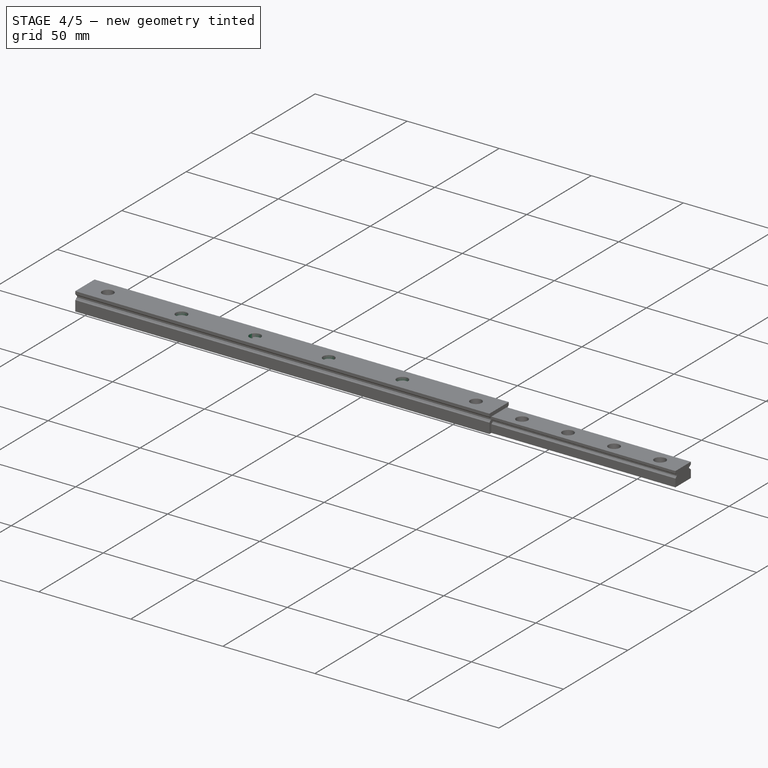
[diagram: stage 4 of 5 — iso view after this stage's code; geometry added in this stage tinted green]
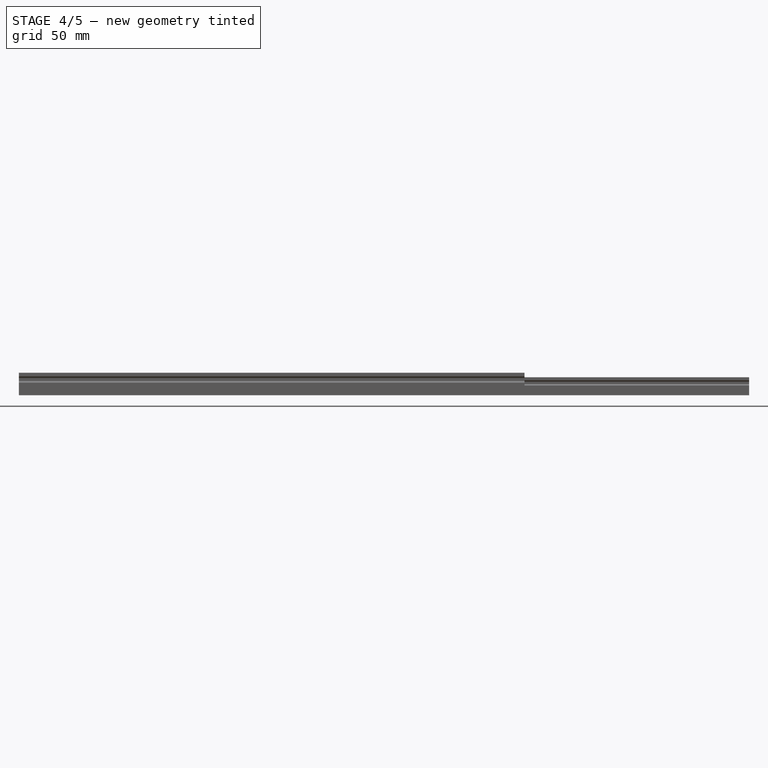
[diagram: stage 4 of 5 — front view after this stage's code; geometry added in this stage tinted green]
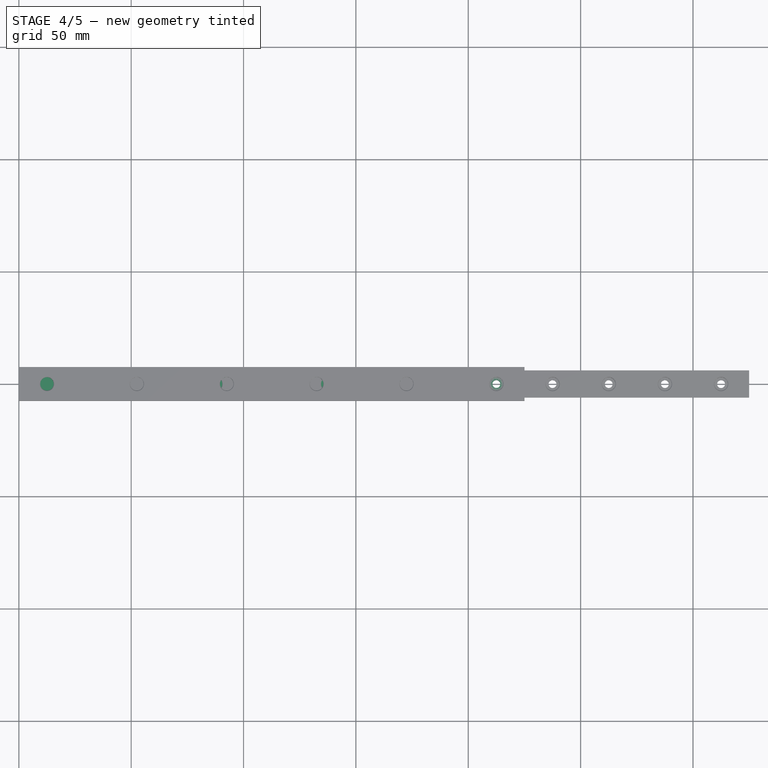
[diagram: stage 4 of 5 — top view after this stage's code; geometry added in this stage tinted green]
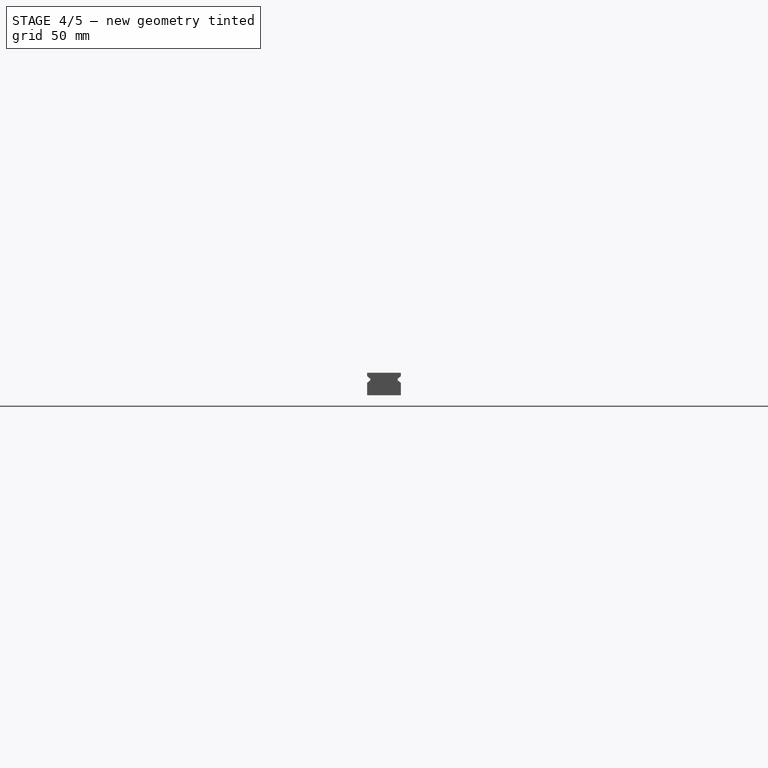
[diagram: stage 4 of 5 — right view after this stage's code; geometry added in this stage tinted green]
FEATURE [Sketcher::SketchObject] Sketch004
  ArcFitTolerance = 0
  AttachmentSupport = -> [YZ_Plane002]
  ExternalTypes = [0]
  FullyConstrained = true
  MakeInternals = false
  MapMode = 5
  Placement = pos=(0,0,0) rot=(0.57735,0.57735,0.57735;2.0944rad)
  _ExternalGeoVersion = 0
  sketch-geometry (4):
    g0: LineSegment StartX=-4.5 StartY=0 StartZ=0 EndX=4.5 EndY=0 EndZ=0
    g1: LineSegment StartX=4.5 StartY=0 StartZ=0 EndX=4.5 EndY=6.5 EndZ=0
    g2: LineSegment StartX=4.5 StartY=6.5 StartZ=0 EndX=-4.5 EndY=6.5 EndZ=0
    g3: LineSegment StartX=-4.5 StartY=6.5 StartZ=0 EndX=-4.5 EndY=0 EndZ=0
  constraints (11):
    c: Coincident(g0,g1)
    c: Coincident(g1,g2)
    c: Coincident(g2,g3)
    c: Coincident(g3,g0)
    c: Horizontal(g0)
    c: Horizontal(g2)
    c: Vertical(g1)
    c: Vertical(g3)
    c: Symmetric(g0,g0,g-1)
    c: DistanceX(g0,g0) = 9  'width'
    c: DistanceY(g1,g1) = 6.5  'height'
FEATURE [PartDesign::Pad] Pad004
  Direction = (1,0,0)
  Length = 175
  Length2 = 10
  Placement = pos=(0,0,0) rot=(0.57735,0.57735,0.57735;2.0944rad)
  Profile = -> Sketch004
  ReferenceAxis = -> Sketch004 [N_Axis]
  SideType = 0
  Suppressed = false
  Type = 0
  Type2 = 0
  expr: Length = Spreadsheet001.length
FEATURE [Sketcher::SketchObject] Sketch014
  ArcFitTolerance = 0
  AttachmentOffset = pos=(12.5,0,0) rot=(0,0,1;1.5708rad)
  AttachmentSupport = -> [XY_Plane006]
  ExternalTypes = [0]
  FullyConstrained = true
  MakeInternals = false
  MapMode = 5
  Placement = pos=(12.5,0,0) rot=(0,0,1;1.5708rad)
  _ExternalGeoVersion = 0
  expr: .AttachmentOffset.Base.x = Spreadsheet003.offset
  sketch-geometry (1):
    g0: Circle CenterX=0 CenterY=0 CenterZ=0 NormalX=0 NormalY=0 NormalZ=1 AngleXU=0 Radius=1.75
  constraints (2):
    c: Coincident(g0,g-1)
    c: Diameter(g0) = 3.5
FEATURE [PartDesign::Pocket] Pocket012  label="Screw hole002"
  BaseFeature = -> Pocket011
  Direction = (0,0,-1)
  Length = 5
  Length2 = 5
  Placement = pos=(0,0,0) rot=(0.57735,0.57735,0.57735;2.0944rad)
  Profile = -> Sketch014
  ReferenceAxis = -> Sketch014 [N_Axis]
  SideType = 2
  Suppressed = false
  Type = 1
  Type2 = 0
FEATURE [Sketcher::SketchObject] Sketch015
  ArcFitTolerance = 0
  AttachmentOffset = pos=(12.5,0,10) rot=(0,0,1;1.5708rad)
  AttachmentSupport = -> [XY_Plane006]
  ExternalTypes = [0]
  FullyConstrained = true
  MakeInternals = false
  MapMode = 5
  Placement = pos=(12.5,0,10) rot=(0,0,1;1.5708rad)
  _ExternalGeoVersion = 0
  expr: .AttachmentOffset.Base.x = Spreadsheet003.offset
  expr: .AttachmentOffset.Base.z = Sketch012.Constraints.height
  sketch-geometry (1):
    g0: Circle CenterX=0 CenterY=0 CenterZ=0 NormalX=0 NormalY=0 NormalZ=1 AngleXU=0 Radius=3
  constraints (2):
    c: Coincident(g0,g-1)
    c: Diameter(g0) = 6
FEATURE [PartDesign::Pocket] Pocket013  label="Screw head cut002"
  BaseFeature = -> Pocket012
  Direction = (0,0,-1)
  Length = 4.5
  Length2 = 5
  Placement = pos=(0,0,0) rot=(0.57735,0.57735,0.57735;2.0944rad)
  Profile = -> Sketch015
  ReferenceAxis = -> Sketch015 [N_Axis]
  SideType = 0
  Suppressed = false
  Type = 0
  Type2 = 0
FEATURE [PartDesign::Chamfer] Chamfer003
  Angle = 45
  Base = -> Pocket013 [Edge47]
  BaseFeature = -> Pocket013
  ChamferType = 0
  FlipDirection = false
  Placement = pos=(0,0,0) rot=(0.57735,0.57735,0.57735;2.0944rad)
  Size = 0.2
  Size2 = 1
  SupportTransform = false
  Suppressed = false
  UseAllEdges = false
FEATURE [PartDesign::LinearPattern] LinearPattern003
  BaseFeature = -> Chamfer003
  Direction = -> Sketch014 [V_Axis]
  Length = 200
  Length2 = 100
  Mode = 0
  Mode2 = 0
  Occurrences = 6
  Occurrences2 = 1
  Offset = 40
  Offset2 = 10
  Originals = -> [Pocket012,Pocket013,Chamfer003]
  Placement = pos=(0,0,0) rot=(0.57735,0.57735,0.57735;2.0944rad)
  Reversed = true
  Reversed2 = false
  SpacingPattern = [0]
  SpacingPattern2 = [0]
  Spacings = [-1,-1,-1,-1,-1]
  Suppressed = false
  TransformMode = 0
  expr: Length = Spreadsheet003.distance
  expr: Occurrences = Spreadsheet003.holes_number
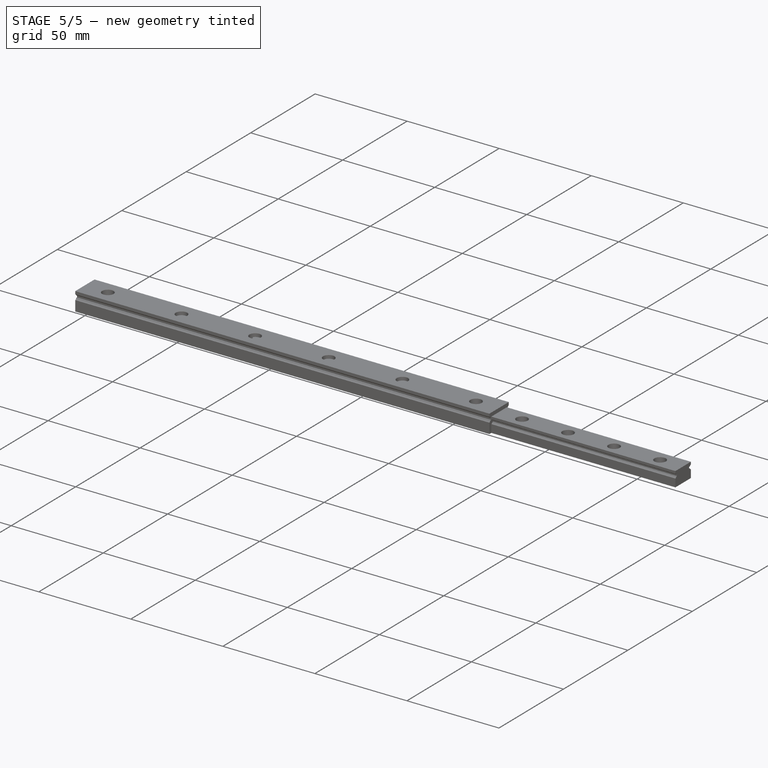
[diagram: stage 5 of 5 — iso view after this stage's code; geometry added in this stage tinted green]
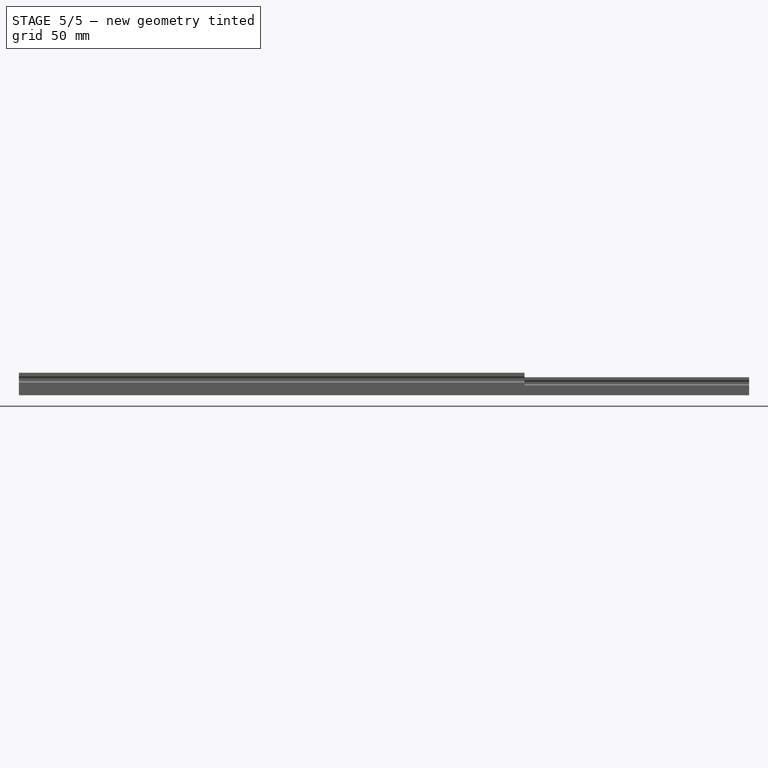
[diagram: stage 5 of 5 — front view after this stage's code; geometry added in this stage tinted green]
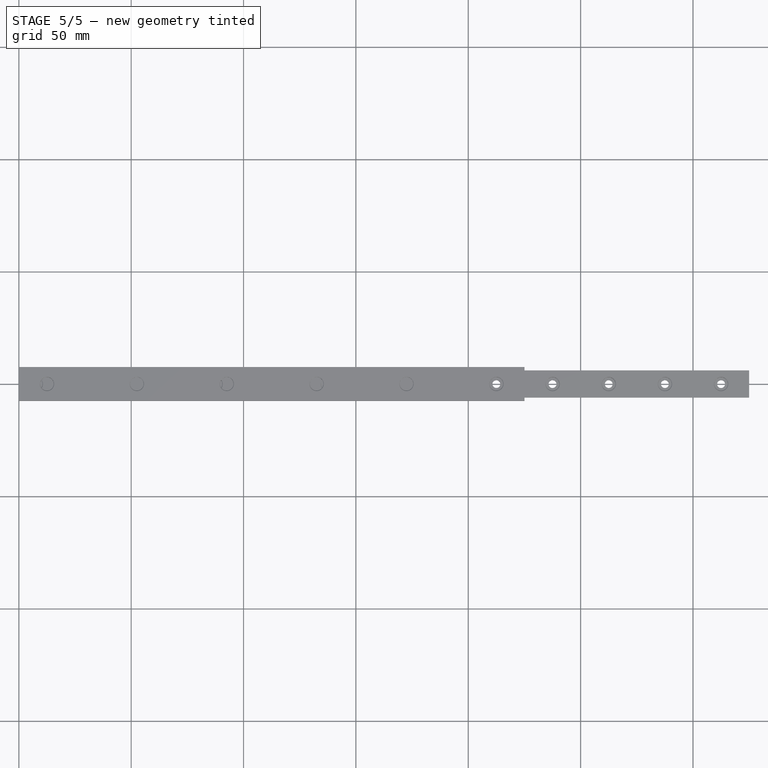
[diagram: stage 5 of 5 — top view after this stage's code; geometry added in this stage tinted green]
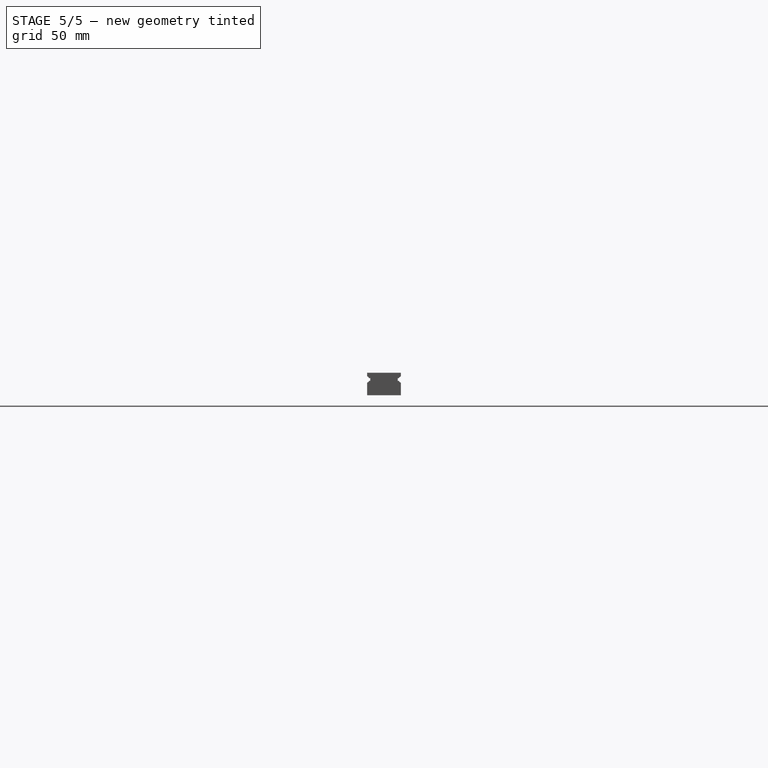
[diagram: stage 5 of 5 — right view after this stage's code; geometry added in this stage tinted green]
FEATURE [Sketcher::SketchObject] Sketch005
  ArcFitTolerance = 0
  AttachmentSupport = -> [YZ_Plane002]
  ExternalTypes = [0]
  FullyConstrained = true
  MakeInternals = false
  MapMode = 5
  Placement = pos=(0,0,0) rot=(0.57735,-0.57735,-0.57735;2.0944rad)
  _ExternalGeoVersion = 0
  expr: Constraints[13] = 6.5 - 1.8
  expr: Constraints[14] = <<Sketch004>>.Constraints.width / 2 + 0.1 mm
  sketch-geometry (10):
    g0: ArcOfCircle CenterX=-4.6 CenterY=4.7 CenterZ=0 NormalX=0 NormalY=0 NormalZ=1 AngleXU=0 Radius=1 StartAngle=0.25268 EndAngle=6.03051
    g1: LineSegment StartX=-3.63175 StartY=4.95 StartZ=0 EndX=-3.13175 EndY=4.95 EndZ=0
    g2: LineSegment StartX=-3.13175 StartY=4.95 StartZ=0 EndX=-3.13175 EndY=4.45 EndZ=0
    g3: LineSegment StartX=-3.13175 StartY=4.45 StartZ=0 EndX=-3.63175 EndY=4.45 EndZ=0
    g4: LineSegment [constr] StartX=-4.6 StartY=4.7 StartZ=0 EndX=-3.13175 EndY=4.7 EndZ=0
    g5: ArcOfCircle CenterX=4.6 CenterY=4.7 CenterZ=0 NormalX=0 NormalY=0 NormalZ=1 AngleXU=0 Radius=1 StartAngle=3.39427 EndAngle=9.1721
    g6: LineSegment StartX=3.63175 StartY=4.95 StartZ=0 EndX=3.13175 EndY=4.95 EndZ=0
    g7: LineSegment StartX=3.13175 StartY=4.95 StartZ=0 EndX=3.13175 EndY=4.45 EndZ=0
    g8: LineSegment StartX=3.13175 StartY=4.45 StartZ=0 EndX=3.63175 EndY=4.45 EndZ=0
    g9: LineSegment [constr] StartX=4.6 StartY=4.7 StartZ=0 EndX=3.13175 EndY=4.7 EndZ=0
  constraints (29):
    c: Horizontal(g1)
    c: Coincident(g2,g1)
    c: Vertical(g2)
    c: Coincident(g3,g2)
    c: Horizontal(g3)
    c: Coincident(g4,g0)
    c: Horizontal(g4)
    c: Symmetric(g2,g1,g4)
    c: Coincident(g0,g3)
    c: Coincident(g0,g1)
    c: DistanceY(g2,g2) = 0.5
    c: DistanceX(g1,g1) = 0.5
    c: Diameter(g0) = 2
    c: DistanceY(g-1,g0) = 4.7
    c: DistanceX(g0,g-1) = 4.6
    c: Horizontal(g6)
    c: Coincident(g7,g6)
    c: Vertical(g7)
    c: Coincident(g8,g7)
    c: Horizontal(g8)
    c: Coincident(g9,g5)
    c: Horizontal(g9)
    c: Symmetric(g7,g6,g9)
    c: Coincident(g5,g8)
    c: Coincident(g5,g6)
    c: Diameter(g5) = 2
    c: Symmetric(g4,g9,g-2)
    c: Equal(g2,g7)
    c: Equal(g1,g6)
FEATURE [PartDesign::Pocket] Pocket005  label="Balls cut"
  BaseFeature = -> Pad004
  Direction = (1,0,0)
  Length = 5
  Length2 = 5
  Placement = pos=(0,0,0) rot=(0.57735,0.57735,0.57735;2.0944rad)
  Profile = -> Sketch005
  ReferenceAxis = -> Sketch005 [N_Axis]
  SideType = 0
  Suppressed = false
  Type = 1
  Type2 = 0
FEATURE [Sketcher::SketchObject] Sketch006
  ArcFitTolerance = 0
  AttachmentOffset = pos=(7.5,0,0) rot=(0,0,1;1.5708rad)
  AttachmentSupport = -> [XY_Plane002]
  ExternalTypes = [0]
  FullyConstrained = true
  MakeInternals = false
  MapMode = 5
  Placement = pos=(7.5,0,0) rot=(0,0,1;1.5708rad)
  _ExternalGeoVersion = 0
  expr: .AttachmentOffset.Base.x = Spreadsheet001.offset
  sketch-geometry (1):
    g0: Circle CenterX=0 CenterY=0 CenterZ=0 NormalX=0 NormalY=0 NormalZ=1 AngleXU=0 Radius=1.75
  constraints (2):
    c: Coincident(g0,g-1)
    c: Diameter(g0) = 3.5
FEATURE [PartDesign::Pocket] Pocket006  label="Screw hole"
  BaseFeature = -> Pocket005
  Direction = (0,0,-1)
  Length = 5
  Length2 = 5
  Placement = pos=(0,0,0) rot=(0.57735,0.57735,0.57735;2.0944rad)
  Profile = -> Sketch006
  ReferenceAxis = -> Sketch006 [N_Axis]
  SideType = 2
  Suppressed = false
  Type = 1
  Type2 = 0
FEATURE [Spreadsheet::Sheet] Spreadsheet001  label="Spreadsheet_MGN9"
  cells = A1='Length rail; B1='Длина рельсы, мм; C1(length)=175; A2='Holes distance; B2='Расстояние между отверстиями; C2(holes_distance)=20; A3='Holes number; B3='Количество отверстий; C3(holes_number)==floor((length - min_offset * 2) / holes_distance) + 1; A4='Distance end holes; B4='Расстояние между центрами крайних отверстий; C4(distance)==holes_distance * (holes_number - 1); A5='Offset 1st hole; B5='Позиция 1го отверстия; C5(offset)==(length - distance) / 2; A6='Min offset 1st hole; B6='Минимальное расстояние от края до центра 1го отверстия; C6(min_offset)=5
FEATURE [App::TextDocument] Text_document002  label="Description_MGN9"
FEATURE [App::TextDocument] Text_document003  label="Описание_MGN9"
  Text = https://uni3d.store/viewtopic.php?p=1476#p1476\n\nРасшифровка маркировки кареток (линейных подшипников) HIWIN MGN9HZ0HM:\n	Серия: MGN – каретка миниатюрной рельсовой направляющей;\n	Типоразмер: 9 (под ширину рельсовой направляющей 9 мм);\n	Тип каретки: H – длинная; базовая динамическая нагрузка C - 2,55 kN, базовая статическая нагрузка C0 - 4,02 kN;\n	Натяг: Z0 – очень легкий (равен 0);\n	Класс точности: H\n	Исполнение каретки: M – нержавеющая сталь.\n\n\nРасшифровка маркировки рельс (линейных направляющих) HIWIN MGNR9R1200HM:\n	Серия: MGN\n	Взаимозаменяемая направляющая\n	Типоразмер: 9\n	R1200 - длина направляющей 1200 мм\n	Класс точности: H\n	Исполнение: M – нержавеющая сталь
FEATURE [Sketcher::SketchObject] Sketch007
  ArcFitTolerance = 0
  AttachmentOffset = pos=(7.5,0,6.5) rot=(0,0,1;1.5708rad)
  AttachmentSupport = -> [XY_Plane002]
  ExternalTypes = [0]
  FullyConstrained = true
  MakeInternals = false
  MapMode = 5
  Placement = pos=(7.5,0,6.5) rot=(0,0,1;1.5708rad)
  _ExternalGeoVersion = 0
  expr: .AttachmentOffset.Base.x = Spreadsheet001.offset
  expr: .AttachmentOffset.Base.z = Sketch004.Constraints.height
  sketch-geometry (1):
    g0: Circle CenterX=0 CenterY=0 CenterZ=0 NormalX=0 NormalY=0 NormalZ=1 AngleXU=0 Radius=3
  constraints (2):
    c: Coincident(g0,g-1)
    c: Diameter(g0) = 6
FEATURE [PartDesign::Pocket] Pocket007  label="Screw head cut"
  BaseFeature = -> Pocket006
  Direction = (0,0,-1)
  Length = 3.5
  Length2 = 5
  Placement = pos=(0,0,0) rot=(0.57735,0.57735,0.57735;2.0944rad)
  Profile = -> Sketch007
  ReferenceAxis = -> Sketch007 [N_Axis]
  SideType = 0
  Suppressed = false
  Type = 0
  Type2 = 0
FEATURE [PartDesign::Chamfer] Chamfer001  label="Chamfer"
  Angle = 45
  Base = -> Pocket007 [Edge47]
  BaseFeature = -> Pocket007
  ChamferType = 0
  FlipDirection = false
  Placement = pos=(0,0,0) rot=(0.57735,0.57735,0.57735;2.0944rad)
  Size = 0.2
  Size2 = 1
  SupportTransform = false
  Suppressed = false
  UseAllEdges = false
FEATURE [PartDesign::LinearPattern] LinearPattern001  label="LinearPattern"
  BaseFeature = -> Chamfer001
  Direction = -> Sketch006 [V_Axis]
  Length = 160
  Length2 = 100
  Mode = 0
  Mode2 = 0
  Occurrences = 9
  Occurrences2 = 1
  Offset = 20
  Offset2 = 10
  Originals = -> [Pocket006,Pocket007,Chamfer001]
  Placement = pos=(0,0,0) rot=(0.57735,0.57735,0.57735;2.0944rad)
  Reversed = true
  Reversed2 = false
  SpacingPattern = [0]
  SpacingPattern2 = [0]
  Spacings = [-1,-1,-1,-1,-1,-1,-1,-1]
  Suppressed = false
  TransformMode = 0
  expr: Length = Spreadsheet001.distance
  expr: Occurrences = Spreadsheet001.holes_number
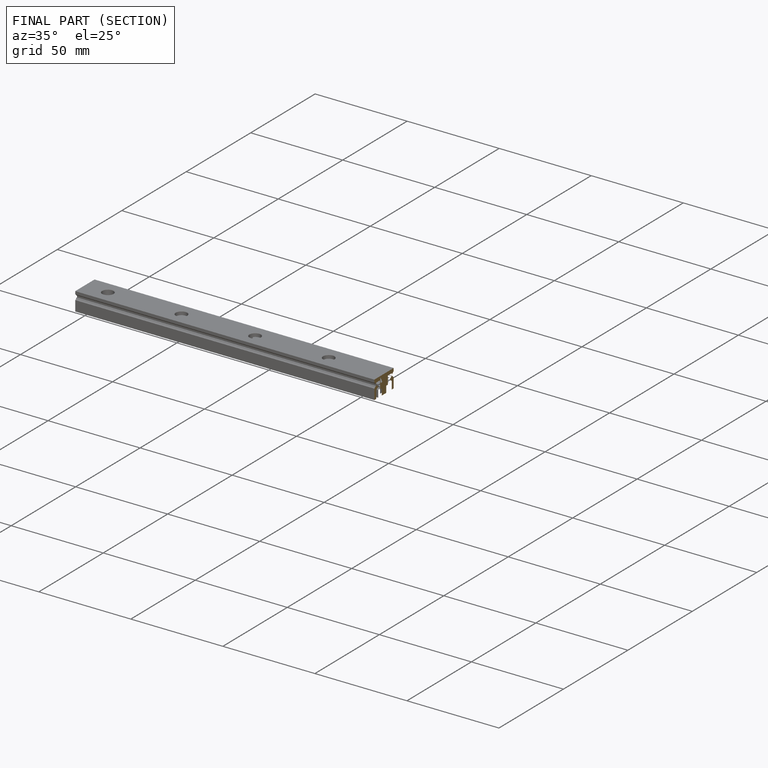
[diagram: finished part — half-section view (interior)]
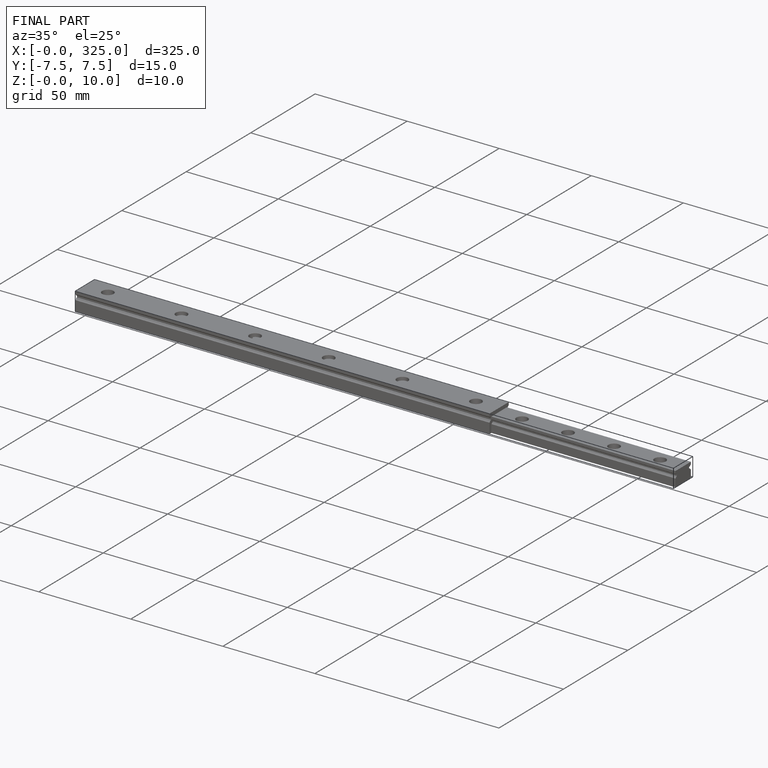
[diagram: finished part — iso view with bounding-box wireframe]
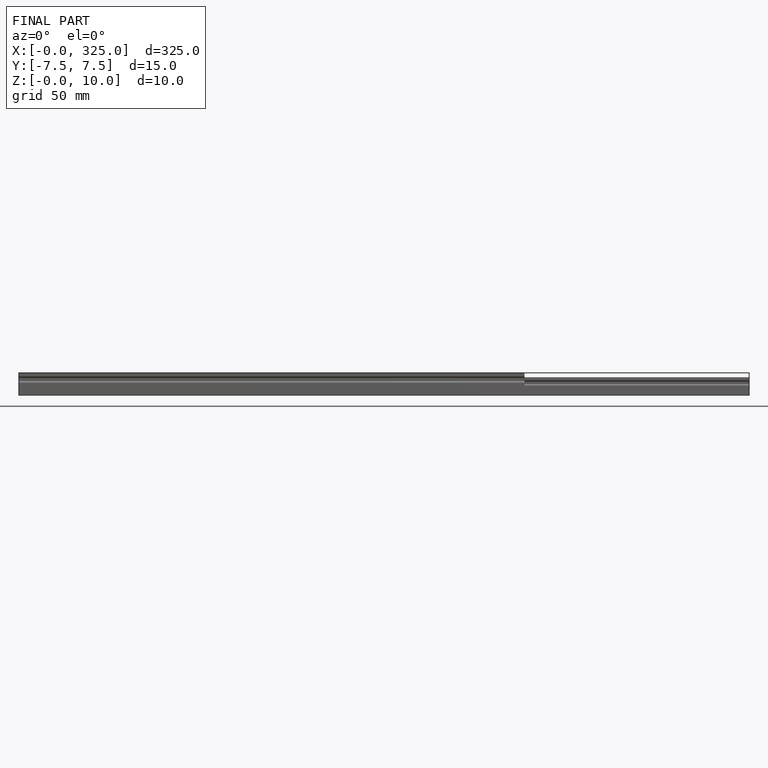
[diagram: finished part — front view with bounding-box wireframe]
